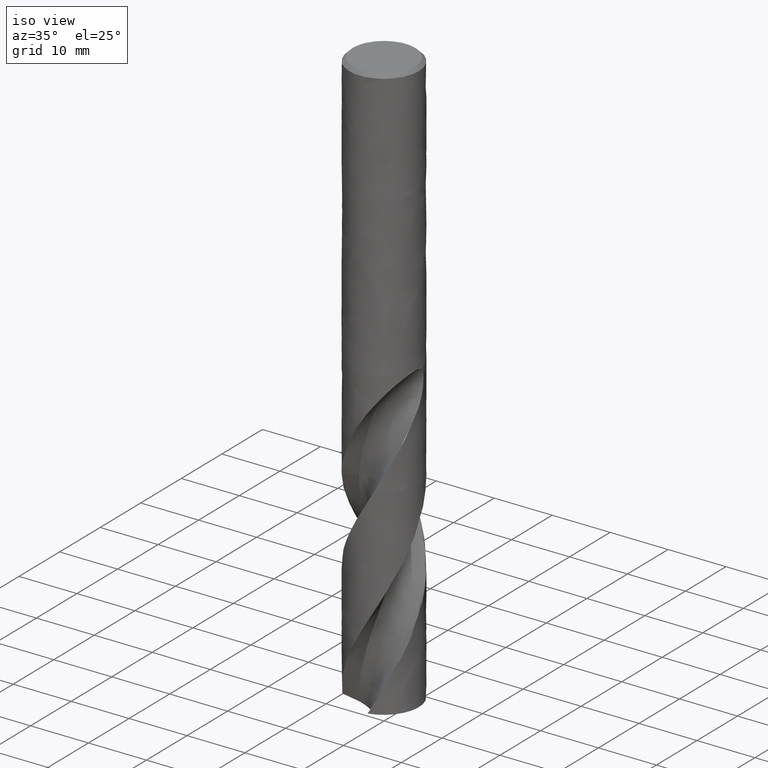
[diagram: clean part render]
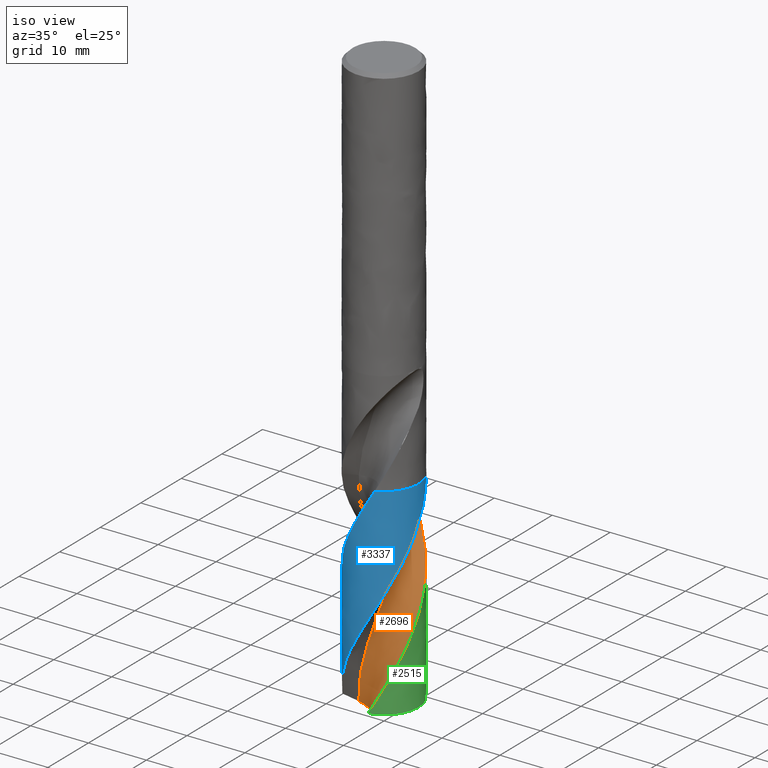
[diagram: same view with three faces highlighted in distinct colors, each labeled with its STEP entity id]
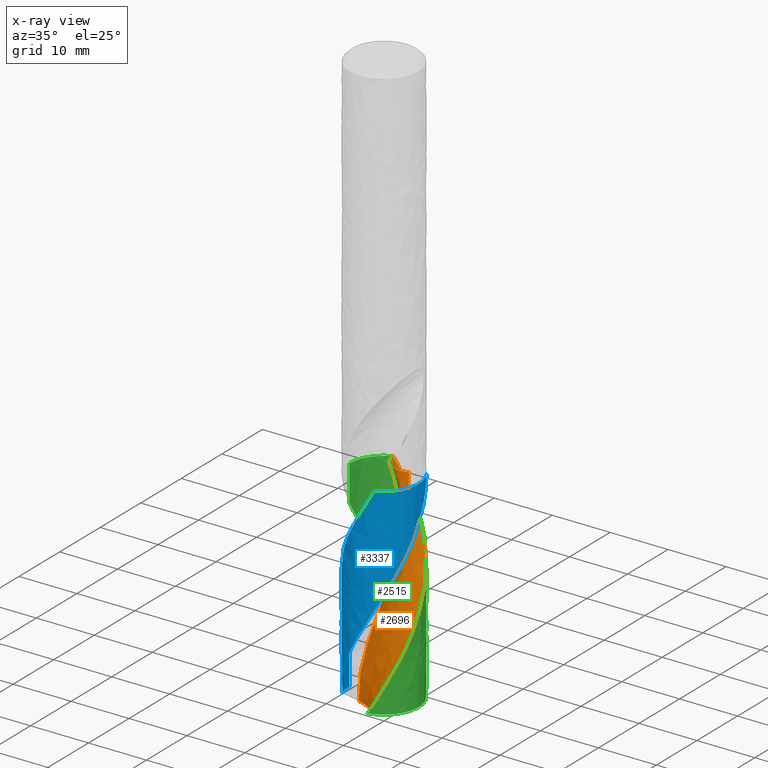
[diagram: x-ray of the same camera — body ghosted, the three highlighted faces saturated]
A machine part, iso view with three faces highlighted in distinct colors.
The next image is the same camera in x-ray (body ghosted, the three faces saturated) — at least one of them is partly hidden behind the body in this view.
Their STEP definitions:

[orange] entity #2696 — the highlighted face is a freeform B-spline surface patch.
#2105 = VERTEX_POINT('', #2106);
#2106 = CARTESIAN_POINT('', (2.67689118029726, 2.39508249800853, -65.));
#2112 = EDGE_CURVE('', #2105, #2113, #2115, .T.);
#2113 = VERTEX_POINT('', #2114);
#2114 = CARTESIAN_POINT('', (-2.27715910033801, 5.55108515803422, -65.));
#2115 = B_SPLINE_CURVE_WITH_KNOTS('', 3, (#2116, #2117, #2118, #2119, #2120, #2121, #2122, #2123, #2124, #2125, #2126, #2127, #2128, #2129, #2130, #2131, #2132, #2133, #2134, #2135, #2136, #2137, #2138, #2139, #2140, #2141, #2142, #2143, #2144, #2145, #2146, #2147, #2148, #2149, #2150, #2151, #2152, #2153, #2154, #2155, #2156, #2157, #2158, #2159, #2160, #2161, #2162, #2163, #2164, #2165, #2166, #2167, #2168, #2169, #2170, #2171, #2172, #2173, #2174, #2175, #2176, #2177, #2178, #2179, #2180, #2181, #2182, #2183, #2184, #2185, #2186, #2187, #2188, #2189, #2190, #2191), .UNSPECIFIED., .F., .U., (4, 3, 3, 3, 3, 3, 3, 3, 3, 3, 3, 3, 3, 3, 3, 3, 3, 3, 3, 3, 3, 3, 3, 3, 3, 4), (0., 0.297074784133163, 0.59388247649632, 0.890428645356707, 1.18671781769646, 1.48275354789705, 1.77853847074824, 2.07407434048509, 2.36936205708442, 2.66440168064749, 2.95919243433534, 3.25373269598857, 3.45020848857844, 3.48914695060014, 3.78619048998578, 4.08296763821652, 4.37948383892874, 4.67574350329585, 4.97175007679336, 5.26750609051264, 5.56301319866806, 5.85827220347879, 6.15328306820888, 6.44804491879185, 6.74255603413405, 6.86809210500296), .UNSPECIFIED.);
#2116 = CARTESIAN_POINT('', (2.67689118029726, 2.39508249800853, -65.));
#2117 = CARTESIAN_POINT('', (2.58518822134422, 2.3577126747088, -65.));
#2118 = CARTESIAN_POINT('', (2.49186274288399, 2.32410131696284, -65.));
#2119 = CARTESIAN_POINT('', (2.39739079761629, 2.2944198761027, -65.));
#2120 = CARTESIAN_POINT('', (2.30300378947698, 2.26476512100992, -65.));
#2121 = CARTESIAN_POINT('', (2.20731210632846, 2.23898285266252, -65.));
#2122 = CARTESIAN_POINT('', (2.11080299466189, 2.21720435017875, -65.));
#2123 = CARTESIAN_POINT('', (2.01437891920424, 2.19544503719175, -65.));
#2124 = CARTESIAN_POINT('', (1.91697541574422, 2.17764554290797, -65.));
#2125 = CARTESIAN_POINT('', (1.81908757457202, 2.16389634001553, -65.));
#2126 = CARTESIAN_POINT('', (1.72128456617541, 2.15015905262791, -65.));
#2127 = CARTESIAN_POINT('', (1.62283256951824, 2.14044178290235, -65.));
#2128 = CARTESIAN_POINT('', (1.52423113837101, 2.13479383708855, -65.));
#2129 = CARTESIAN_POINT('', (1.42571404968367, 2.12915072245862, -65.));
#2130 = CARTESIAN_POINT('', (1.32688136873356, 2.12756042898992, -65.));
#2131 = CARTESIAN_POINT('', (1.22823372443918, 2.13003101218488, -65.));
#2132 = CARTESIAN_POINT('', (1.12966965638801, 2.13249950225269, -65.));
#2133 = CARTESIAN_POINT('', (1.03112410027255, 2.13902614205969, -65.));
#2134 = CARTESIAN_POINT('', (0.933095386209476, 2.14957792736599, -65.));
#2135 = CARTESIAN_POINT('', (0.835149213055849, 2.16012082799024, -65.));
#2136 = CARTESIAN_POINT('', (0.737554119770081, 2.17469983594969, -65.));
#2137 = CARTESIAN_POINT('', (0.640802800417377, 2.193241351328, -65.));
#2138 = CARTESIAN_POINT('', (0.544132720419742, 2.2117672979186, -65.));
#2139 = CARTESIAN_POINT('', (0.448142526176011, 2.23428022492377, -65.));
#2140 = CARTESIAN_POINT('', (0.353315997231219, 2.26066666977922, -65.));
#2141 = CARTESIAN_POINT('', (0.258569139062289, 2.28703094543205, -65.));
#2142 = CARTESIAN_POINT('', (0.16482501832718, 2.31730645692551, -65.));
#2143 = CARTESIAN_POINT('', (0.0725553020535893, 2.35134087512787, -65.));
#2144 = CARTESIAN_POINT('', (-0.0196365834781581, 2.3853465848425, -65.));
#2145 = CARTESIAN_POINT('', (-0.110510977975363, 2.4231618120798, -65.));
#2146 = CARTESIAN_POINT('', (-0.199611423301388, 2.46459661259578, -65.));
#2147 = CARTESIAN_POINT('', (-0.288636157460911, 2.50599620479075, -65.));
#2148 = CARTESIAN_POINT('', (-0.376038826345168, 2.55107843886268, -65.));
#2149 = CARTESIAN_POINT('', (-0.46138115498793, 2.59961725289758, -65.));
#2150 = CARTESIAN_POINT('', (-0.51830954083045, 2.63199551556819, -65.));
#2151 = CARTESIAN_POINT('', (-0.574374884330232, 2.66594050126904, -65.));
#2152 = CARTESIAN_POINT('', (-0.629452001885327, 2.70137641708935, -65.));
#2153 = CARTESIAN_POINT('', (-0.640367434376601, 2.70839926730507, -65.));
#2154 = CARTESIAN_POINT('', (-0.651245044050916, 2.7154812553495, -65.));
#2155 = CARTESIAN_POINT('', (-0.662083876445775, 2.72262175980928, -65.));
#2156 = CARTESIAN_POINT('', (-0.744768321855608, 2.77709336982175, -65.));
#2157 = CARTESIAN_POINT('', (-0.825271883015731, 2.83502840502718, -65.));
#2158 = CARTESIAN_POINT('', (-0.903183998013762, 2.89613140124354, -65.));
#2159 = CARTESIAN_POINT('', (-0.981026240769031, 2.95717959977683, -65.));
#2160 = CARTESIAN_POINT('', (-1.05641384263355, 3.0214937105718, -65.));
#2161 = CARTESIAN_POINT('', (-1.12896302109751, 3.08874632394508, -65.));
#2162 = CARTESIAN_POINT('', (-1.20144840917799, 3.15593980405058, -65.));
#2163 = CARTESIAN_POINT('', (-1.27122321167209, 3.22618048471091, -65.));
#2164 = CARTESIAN_POINT('', (-1.33793284323947, 3.29911141306104, -65.));
#2165 = CARTESIAN_POINT('', (-1.40458475976455, 3.37197924390163, -65.));
#2166 = CARTESIAN_POINT('', (-1.46828957406393, 3.44765593555299, -65.));
#2167 = CARTESIAN_POINT('', (-1.52872410681369, 3.52575757445512, -65.));
#2168 = CARTESIAN_POINT('', (-1.58910701110946, 3.6037924921188, -65.));
#2169 = CARTESIAN_POINT('', (-1.64632720629194, 3.684379998138, -65.));
#2170 = CARTESIAN_POINT('', (-1.70009490512838, 3.76711196334978, -65.));
#2171 = CARTESIAN_POINT('', (-1.75381709138537, 3.84977389868821, -65.));
#2172 = CARTESIAN_POINT('', (-1.80418320872513, 3.93471602561462, -65.));
#2173 = CARTESIAN_POINT('', (-1.85093861295699, 4.0215088883698, -65.));
#2174 = CARTESIAN_POINT('', (-1.89765466826706, 4.10822870704323, -65.));
#2175 = CARTESIAN_POINT('', (-1.94084472600421, 4.19694210542159, -65.));
#2176 = CARTESIAN_POINT('', (-1.9802907900788, 4.28720131438948, -65.));
#2177 = CARTESIAN_POINT('', (-2.01970373582844, 4.37738474307658, -65.));
#2178 = CARTESIAN_POINT('', (-2.05544520947928, 4.46926292152214, -65.));
#2179 = CARTESIAN_POINT('', (-2.08733511309656, 4.56237288419911, -65.));
#2180 = CARTESIAN_POINT('', (-2.1191982159622, 4.6554045958718, -65.));
#2181 = CARTESIAN_POINT('', (-2.14726968154179, 4.74982208068681, -65.));
#2182 = CARTESIAN_POINT('', (-2.17140829770595, 4.8451503761224, -65.));
#2183 = CARTESIAN_POINT('', (-2.19552653883436, 4.94039820640562, -65.));
#2184 = CARTESIAN_POINT('', (-2.21575896873282, 5.03671481829359, -65.));
#2185 = CARTESIAN_POINT('', (-2.23200398068693, 5.13361651237269, -65.));
#2186 = CARTESIAN_POINT('', (-2.24823517403807, 5.23043577831684, -65.));
#2187 = CARTESIAN_POINT('', (-2.26051287771009, 5.32800099715006, -65.));
#2188 = CARTESIAN_POINT('', (-2.26877553812963, 5.42582303116264, -65.));
#2189 = CARTESIAN_POINT('', (-2.27229751699548, 5.46751990830793, -65.));
#2190 = CARTESIAN_POINT('', (-2.27509279034027, 5.50928665133156, -65.));
#2191 = CARTESIAN_POINT('', (-2.27715902813225, 5.55108516160358, -65.));
#2520 = EDGE_CURVE('', #2113, #2521, #2523, .T.);
#2521 = VERTEX_POINT('', #2522);
#2522 = CARTESIAN_POINT('', (-0.577059171768272, 5.97218575667889, -68.0517271769491));
#2523 = B_SPLINE_CURVE_WITH_KNOTS('', 3, (#2524, #2525, #2526, #2527, #2528, #2529, #2530, #2531, #2532, #2533, #2534, #2535, #2536), .UNSPECIFIED., .F., .U., (4, 3, 3, 3, 4), (7.2710134947941, 7.90423449804069, 8.90051792515169, 9.89657756311769, 10.7925224345988), .UNSPECIFIED.);
#2524 = CARTESIAN_POINT('', (-2.27715910033801, 5.55108515803422, -65.));
#2525 = CARTESIAN_POINT('', (-2.17964666319312, 5.59108658610081, -65.1828751037502));
#2526 = CARTESIAN_POINT('', (-2.08107050470833, 5.6285210848046, -65.3658018574239));
#2527 = CARTESIAN_POINT('', (-1.981607685674, 5.66332331587005, -65.5486899258143));
#2528 = CARTESIAN_POINT('', (-1.8251170485827, 5.71807968980462, -65.8364383590145));
#2529 = CARTESIAN_POINT('', (-1.66633333440727, 5.7663515702527, -66.1242555615794));
#2530 = CARTESIAN_POINT('', (-1.50587647047148, 5.80795455007004, -66.4120220079888));
#2531 = CARTESIAN_POINT('', (-1.3454556489945, 5.84954818486063, -66.6997238151547));
#2532 = CARTESIAN_POINT('', (-1.18329603504048, 5.884493221719, -66.987499032892));
#2533 = CARTESIAN_POINT('', (-1.02002743482183, 5.91265964116054, -67.2752267118934));
#2534 = CARTESIAN_POINT('', (-0.873169094754442, 5.93799503081469, -67.5340346472403));
#2535 = CARTESIAN_POINT('', (-0.725360104031492, 5.95785626047248, -67.7928984682573));
#2536 = CARTESIAN_POINT('', (-0.57705917176822, 5.97218575667889, -68.0517271769492));
#2539 = VERTEX_POINT('', #2540);
#2540 = CARTESIAN_POINT('', (2.49270495549511, -5.45769383575609, -97.5513793613403));
#2658 = EDGE_CURVE('', #2539, #2659, #2661, .T.);
#2659 = VERTEX_POINT('', #2660);
#2660 = CARTESIAN_POINT('', (1.27676876593837, -5.86258147221206, -99.8161785944028));
#2661 = B_SPLINE_CURVE_WITH_KNOTS('', 3, (#2662, #2663, #2664, #2665, #2666, #2667, #2668, #2669, #2670, #2671), .UNSPECIFIED., .F., .U., (4, 3, 3, 4), (0., 0.996560625313039, 1.99291443164788, 2.60331448801441), .UNSPECIFIED.);
#2662 = CARTESIAN_POINT('', (2.4927049554951, -5.4576938357561, -97.5513793613403));
#2663 = CARTESIAN_POINT('', (2.34362651255867, -5.52578277307071, -97.8403216297238));
#2664 = CARTESIAN_POINT('', (2.191745073487, -5.58776334814458, -98.1293349905167));
#2665 = CARTESIAN_POINT('', (2.03763625994222, -5.64340663714464, -98.4183028398853));
#2666 = CARTESIAN_POINT('', (1.88355942902504, -5.6990383783393, -98.7072107189581));
#2667 = CARTESIAN_POINT('', (1.72719146948728, -5.74835889903267, -98.9961897208511));
#2668 = CARTESIAN_POINT('', (1.56912161010172, -5.79118790687289, -99.2851220982086));
#2669 = CARTESIAN_POINT('', (1.4722826654765, -5.81742640632316, -99.4621318494675));
#2670 = CARTESIAN_POINT('', (1.37478624046809, -5.8412349628989, -99.6391599701928));
#2671 = CARTESIAN_POINT('', (1.27676876593838, -5.86258147221206, -99.8161785944028));
#2696 = ADVANCED_FACE('', (#2697), #2906, .T.);
#2697 = FACE_OUTER_BOUND('', #2698, .T.);
#2698 = EDGE_LOOP('', (#2699, #2700, #2741, #2871, #2872, #2905));
#2699 = ORIENTED_EDGE('', *, *, #2112, .F.);
#2700 = ORIENTED_EDGE('', *, *, #2701, .F.);
#2701 = EDGE_CURVE('', #2702, #2105, #2704, .T.);
#2702 = VERTEX_POINT('', #2703);
#2703 = CARTESIAN_POINT('', (-3.19951575281794, -1.63422535466537, -100.692359060152));
#2704 = B_SPLINE_CURVE_WITH_KNOTS('', 3, (#2705, #2706, #2707, #2708, #2709, #2710, #2711, #2712, #2713, #2714, #2715, #2716, #2717, #2718, #2719, #2720, #2721, #2722, #2723, #2724, #2725, #2726, #2727, #2728, #2729, #2730, #2731, #2732, #2733, #2734, #2735, #2736, #2737, #2738, #2739, #2740), .UNSPECIFIED., .F., .U., (4, 1, 1, 1, 1, 1, 1, 1, 1, 1, 1, 1, 1, 1, 1, 1, 1, 1, 1, 1, 1, 1, 1, 1, 1, 1, 1, 1, 1, 1, 1, 1, 1, 4), (1.35764093984823, 2.2028, 3.3042, 4.4056, 5.507, 6.6084, 7.7098, 8.8112, 9.9126, 11.014, 12.1154, 13.2168, 14.3182, 15.4196, 16.521, 17.6224, 18.7238, 19.8252, 20.9266, 22.028, 23.1294, 24.2308, 25.3322, 26.4336, 27.535, 28.6364, 29.7378, 30.8392, 31.9406, 33.042, 34.1434, 35.2448, 36.3462, 37.05), .UNSPECIFIED.);
#2705 = CARTESIAN_POINT('', (-3.19951575281794, -1.63422535466537, -100.692359060152));
#2706 = CARTESIAN_POINT('', (-3.15357219183988, -1.71899833906773, -100.410639373435));
#2707 = CARTESIAN_POINT('', (-3.04012014692603, -1.90985794145532, -99.7617863533839));
#2708 = CARTESIAN_POINT('', (-2.83624783397093, -2.19076765387687, -98.7458));
#2709 = CARTESIAN_POINT('', (-2.58556225749222, -2.4701996834714, -97.6444));
#2710 = CARTESIAN_POINT('', (-2.30796932121323, -2.72171165635998, -96.543));
#2711 = CARTESIAN_POINT('', (-2.00650311223411, -2.94277939149954, -95.4416));
#2712 = CARTESIAN_POINT('', (-1.68442585480345, -3.13119909533141, -94.3402));
#2713 = CARTESIAN_POINT('', (-1.34519690621638, -3.28510889386325, -93.2388));
#2714 = CARTESIAN_POINT('', (-0.992437256280548, -3.40300527566991, -92.1374));
#2715 = CARTESIAN_POINT('', (-0.629893427514948, -3.48375653407726, -91.036));
#2716 = CARTESIAN_POINT('', (-0.261400152587537, -3.52661251478107, -89.9346));
#2717 = CARTESIAN_POINT('', (0.10915757470606, -3.5312107594725, -88.8332));
#2718 = CARTESIAN_POINT('', (0.477882800358313, -3.49757896510843, -87.7318));
#2719 = CARTESIAN_POINT('', (0.840904900449291, -3.42613376356489, -86.6304));
#2720 = CARTESIAN_POINT('', (1.19441752348301, -3.3176758427233, -85.529));
#2721 = CARTESIAN_POINT('', (1.53471584555617, -3.17338146434087, -84.4276));
#2722 = CARTESIAN_POINT('', (1.85823280775912, -2.99479046285121, -83.3262));
#2723 = CARTESIAN_POINT('', (2.1615740141526, -2.7837908385842, -82.2248));
#2724 = CARTESIAN_POINT('', (2.44155098056631, -2.54260008692987, -81.1234));
#2725 = CARTESIAN_POINT('', (2.69521243851664, -2.27374343197842, -80.022));
#2726 = CARTESIAN_POINT('', (2.91987341484703, -1.98002915883716, -78.9206));
#2727 = CARTESIAN_POINT('', (3.11314182606479, -1.66452126309833, -77.8192));
#2728 = CARTESIAN_POINT('', (3.2729423468062, -1.33050965837686, -76.7178));
#2729 = CARTESIAN_POINT('', (3.39753733381056, -0.981478204302161, -75.6164));
#2730 = CARTESIAN_POINT('', (3.48554461183926, -0.621070833980943, -74.515));
#2731 = CARTESIAN_POINT('', (3.53595194946629, -0.253056085456912, -73.4136));
#2732 = CARTESIAN_POINT('', (3.54812809479906, 0.118709675706851, -72.3122));
#2733 = CARTESIAN_POINT('', (3.52183021288659, 0.490319923235979, -71.2108));
#2734 = CARTESIAN_POINT('', (3.45720780695582, 0.857856544332248, -70.1094));
#2735 = CARTESIAN_POINT('', (3.35480244825163, 1.21742766147589, -69.008));
#2736 = CARTESIAN_POINT('', (3.21554560966392, 1.56520927034945, -67.9066));
#2737 = CARTESIAN_POINT('', (3.04074595970818, 1.89747199726517, -66.8052));
#2738 = CARTESIAN_POINT('', (2.85720535604411, 2.17297452124343, -65.8363333333333));
#2739 = CARTESIAN_POINT('', (2.72895117704706, 2.33397271474819, -65.2346));
#2740 = CARTESIAN_POINT('', (2.67689118029726, 2.39508249800853, -65.));
#2741 = ORIENTED_EDGE('', *, *, #2742, .T.);
#2742 = EDGE_CURVE('', #2702, #2659, #2743, .T.);
#2743 = B_SPLINE_CURVE_WITH_KNOTS('', 3, (#2744, #2745, #2746, #2747, #2748, #2749, #2750, #2751, #2752, #2753, #2754, #2755, #2756, #2757, #2758, #2759, #2760, #2761, #2762, #2763, #2764, #2765, #2766, #2767, #2768, #2769, #2770, #2771, #2772, #2773, #2774, #2775, #2776, #2777, #2778, #2779, #2780, #2781, #2782, #2783, #2784, #2785, #2786, #2787, #2788, #2789, #2790, #2791, #2792, #2793, #2794, #2795, #2796, #2797, #2798, #2799, #2800, #2801, #2802, #2803, #2804, #2805, #2806, #2807, #2808, #2809, #2810, #2811, #2812, #2813, #2814, #2815, #2816, #2817, #2818, #2819, #2820, #2821, #2822, #2823, #2824, #2825, #2826, #2827, #2828, #2829, #2830, #2831, #2832, #2833, #2834, #2835, #2836, #2837, #2838, #2839, #2840, #2841, #2842, #2843, #2844, #2845, #2846, #2847, #2848, #2849, #2850, #2851, #2852, #2853, #2854, #2855, #2856, #2857, #2858, #2859, #2860, #2861, #2862, #2863, #2864, #2865, #2866, #2867, #2868, #2869, #2870), .UNSPECIFIED., .F., .U., (4, 3, 3, 3, 3, 3, 3, 3, 3, 3, 3, 3, 3, 3, 3, 3, 3, 3, 3, 3, 3, 3, 3, 3, 3, 3, 3, 3, 3, 3, 3, 3, 3, 3, 3, 3, 3, 3, 3, 3, 3, 3, 4), (0., 0.197263139069548, 0.394394021810989, 0.591351824739984, 0.788093900501361, 0.984582711255246, 1.1155813967322, 1.24650169189798, 1.37735116103897, 1.50814398890355, 1.63890113216055, 1.7696492598467, 1.90041827512799, 2.03123763517426, 2.16213219889185, 2.2931186697437, 2.42420361559585, 2.55538351943595, 2.68664661143889, 2.81797572274755, 2.9493512879107, 3.08075384641689, 3.21216574671206, 3.34357205455768, 3.47496083408914, 3.51389560447471, 3.71197543812155, 3.75094248917848, 3.94953353023669, 4.14778120693169, 4.34573551302099, 4.5434395658974, 4.74092949972846, 4.93823506475065, 5.13538047684484, 5.33238529032225, 5.52926519321063, 5.72603268978685, 6.02072638587149, 6.31510980788521, 6.60920912986105, 6.90304073106365, 7.15963206366408), .UNSPECIFIED.);
#2744 = CARTESIAN_POINT('', (-3.19951575281794, -1.63422535466536, -100.692359060152));
#2745 = CARTESIAN_POINT('', (-3.13935622681239, -1.61932742953078, -100.714325436864));
#2746 = CARTESIAN_POINT('', (-3.07856781558002, -1.6065404233569, -100.736117328317));
#2747 = CARTESIAN_POINT('', (-3.01733676414016, -1.59595415765482, -100.757619136763));
#2748 = CARTESIAN_POINT('', (-2.95614676544878, -1.58537498958201, -100.779106529185));
#2749 = CARTESIAN_POINT('', (-2.89444244272994, -1.57698140299027, -100.800329787367));
#2750 = CARTESIAN_POINT('', (-2.83242148031587, -1.5708482849912, -100.821153520339));
#2751 = CARTESIAN_POINT('', (-2.7704549719599, -1.56472055183544, -100.84195897019));
#2752 = CARTESIAN_POINT('', (-2.70809559774334, -1.56084208448984, -100.862391512641));
#2753 = CARTESIAN_POINT('', (-2.64555198014478, -1.5592689475171, -100.882293400811));
#2754 = CARTESIAN_POINT('', (-2.58307686634387, -1.55769753359558, -100.902173490514));
#2755 = CARTESIAN_POINT('', (-2.52033664155691, -1.55842481057437, -100.921549966324));
#2756 = CARTESIAN_POINT('', (-2.45755040582865, -1.56148301255846, -100.940241225149));
#2757 = CARTESIAN_POINT('', (-2.39484499448125, -1.56453727773571, -100.958908422818));
#2758 = CARTESIAN_POINT('', (-2.33200801305963, -1.56992120650163, -100.976917448389));
#2759 = CARTESIAN_POINT('', (-2.26926861135079, -1.57763675973644, -100.99406385117));
#2760 = CARTESIAN_POINT('', (-2.22744038143818, -1.58278070318853, -101.005495322592));
#2761 = CARTESIAN_POINT('', (-2.18562251080628, -1.58896409518478, -101.016552058444));
#2762 = CARTESIAN_POINT('', (-2.14388546961408, -1.59617826410026, -101.027168774986));
#2763 = CARTESIAN_POINT('', (-2.10217340408964, -1.60338811601864, -101.037779138427));
#2764 = CARTESIAN_POINT('', (-2.06051454372556, -1.6116323615979, -101.047956882056));
#2765 = CARTESIAN_POINT('', (-2.01898108919599, -1.62089358427331, -101.057634696725));
#2766 = CARTESIAN_POINT('', (-1.97747010367688, -1.63014979675846, -101.067307275833));
#2767 = CARTESIAN_POINT('', (-1.93605617857402, -1.64042826342041, -101.076486859226));
#2768 = CARTESIAN_POINT('', (-1.89481285177438, -1.65170169012974, -101.085106373114));
#2769 = CARTESIAN_POINT('', (-1.85358737812071, -1.66297023687063, -101.093722155842));
#2770 = CARTESIAN_POINT('', (-1.81250363675537, -1.67524080065101, -101.101784128231));
#2771 = CARTESIAN_POINT('', (-1.77163579640056, -1.68847531728328, -101.109228503953));
#2772 = CARTESIAN_POINT('', (-1.73077910614373, -1.70170622310187, -101.116670848603));
#2773 = CARTESIAN_POINT('', (-1.69010923081359, -1.71590996968612, -101.123500954681));
#2774 = CARTESIAN_POINT('', (-1.64969984513846, -1.7310373418185, -101.129662014909));
#2775 = CARTESIAN_POINT('', (-1.60929324564899, -1.74616367093409, -101.135822650339));
#2776 = CARTESIAN_POINT('', (-1.56911823572453, -1.76222428377045, -101.141318483197));
#2777 = CARTESIAN_POINT('', (-1.52924641297286, -1.77915923749425, -101.146103630692));
#2778 = CARTESIAN_POINT('', (-1.48936822052009, -1.79609689665225, -101.150889542635));
#2779 = CARTESIAN_POINT('', (-1.44976499472804, -1.81392111892768, -101.154967741498));
#2780 = CARTESIAN_POINT('', (-1.41050430163231, -1.8325626780689, -101.15830686333));
#2781 = CARTESIAN_POINT('', (-1.3712284935618, -1.85121141402423, -101.16164727069));
#2782 = CARTESIAN_POINT('', (-1.33226821248276, -1.87069091391363, -101.16425024674));
#2783 = CARTESIAN_POINT('', (-1.29368491142682, -1.89092515591576, -101.166101490614));
#2784 = CARTESIAN_POINT('', (-1.25507943012257, -1.91117102990634, -101.167953798707));
#2785 = CARTESIAN_POINT('', (-1.21682564773062, -1.93218579605673, -101.169054762274));
#2786 = CARTESIAN_POINT('', (-1.1789770590159, -1.95388992368228, -101.169408063796));
#2787 = CARTESIAN_POINT('', (-1.14110189505448, -1.97560929078084, -101.169761613386));
#2788 = CARTESIAN_POINT('', (-1.10360878190462, -1.99803235302628, -101.169366813847));
#2789 = CARTESIAN_POINT('', (-1.0665420165174, -2.02107967475825, -101.168244399355));
#2790 = CARTESIAN_POINT('', (-1.02944738451382, -2.04414432335611, -101.167121141036));
#2791 = CARTESIAN_POINT('', (-0.992758360122957, -2.06784723286956, -101.165268763954));
#2792 = CARTESIAN_POINT('', (-0.956509647567212, -2.09211240875776, -101.162722487292));
#2793 = CARTESIAN_POINT('', (-0.920234676429387, -2.11639516234922, -101.160174366106));
#2794 = CARTESIAN_POINT('', (-0.884381774115639, -2.14125343015823, -101.156930302776));
#2795 = CARTESIAN_POINT('', (-0.848976525071336, -2.16661726745414, -101.153036375151));
#2796 = CARTESIAN_POINT('', (-0.813548823673154, -2.19199718930999, -101.149139978179));
#2797 = CARTESIAN_POINT('', (-0.778552966983521, -2.21789488969137, -101.144591385124));
#2798 = CARTESIAN_POINT('', (-0.744006580540755, -2.2442480954479, -101.139443560416));
#2799 = CARTESIAN_POINT('', (-0.709442818852494, -2.27061455565639, -101.134293146587));
#2800 = CARTESIAN_POINT('', (-0.675314970504421, -2.29744754925393, -101.128541072527));
#2801 = CARTESIAN_POINT('', (-0.641634258853789, -2.32469311367359, -101.122243494363));
#2802 = CARTESIAN_POINT('', (-0.607941633630741, -2.35194831541945, -101.115943688614));
#2803 = CARTESIAN_POINT('', (-0.574684583538587, -2.37962591547095, -101.10909598155));
#2804 = CARTESIAN_POINT('', (-0.541869587477843, -2.40768010475845, -101.101756699156));
#2805 = CARTESIAN_POINT('', (-0.509047849018353, -2.43574005825602, -101.094415908781));
#2806 = CARTESIAN_POINT('', (-0.476658312087889, -2.46418529709962, -101.086581248991));
#2807 = CARTESIAN_POINT('', (-0.444704247400579, -2.49297747566218, -101.078307017142));
#2808 = CARTESIAN_POINT('', (-0.412747911006136, -2.52177170114421, -101.070032197054));
#2809 = CARTESIAN_POINT('', (-0.3812186203938, -2.55092055332021, -101.061315643816));
#2810 = CARTESIAN_POINT('', (-0.35011772755217, -2.58039217915503, -101.052208216108));
#2811 = CARTESIAN_POINT('', (-0.319018158260187, -2.60986255077633, -101.043101175981));
#2812 = CARTESIAN_POINT('', (-0.288339727467532, -2.63966251966521, -101.033601236071));
#2813 = CARTESIAN_POINT('', (-0.25808287001798, -2.66976566821872, -101.023755058236));
#2814 = CARTESIAN_POINT('', (-0.227830048536802, -2.69986480130711, -101.013910193785));
#2815 = CARTESIAN_POINT('', (-0.197992483845862, -2.73027322283194, -101.003717189478));
#2816 = CARTESIAN_POINT('', (-0.168570422134951, -2.76096893314759, -100.993218235758));
#2817 = CARTESIAN_POINT('', (-0.159851707941323, -2.77006507086364, -100.990107054165));
#2818 = CARTESIAN_POINT('', (-0.151169165282727, -2.77918678613367, -100.986968867275));
#2819 = CARTESIAN_POINT('', (-0.142522804443525, -2.78833356846193, -100.983804698076));
#2820 = CARTESIAN_POINT('', (-0.0985346237063848, -2.83486763310496, -100.96770705316));
#2821 = CARTESIAN_POINT('', (-0.0554726492635346, -2.88206023713936, -100.950934805436));
#2822 = CARTESIAN_POINT('', (-0.0133398935547617, -2.9298533287903, -100.933609544242));
#2823 = CARTESIAN_POINT('', (-0.00505137062617067, -2.9392553754714, -100.930201250095));
#2824 = CARTESIAN_POINT('', (0.00320154170819612, -2.94868110113435, -100.92677134665));
#2825 = CARTESIAN_POINT('', (0.0114188033312761, -2.95813012083589, -100.923320665382));
#2826 = CARTESIAN_POINT('', (0.0532971209383897, -3.00628595014839, -100.905734669858));
#2827 = CARTESIAN_POINT('', (0.094258136763283, -3.0550558824595, -100.887606852069));
#2828 = CARTESIAN_POINT('', (0.13429380965933, -3.10439464514658, -100.869036014359));
#2829 = CARTESIAN_POINT('', (0.174260260785573, -3.15364810100037, -100.850497285671));
#2830 = CARTESIAN_POINT('', (0.21331716803042, -3.20348412841889, -100.831511030322));
#2831 = CARTESIAN_POINT('', (0.251451629989321, -3.25386442225179, -100.812159198497));
#2832 = CARTESIAN_POINT('', (0.289529659860896, -3.30417016238719, -100.792836003874));
#2833 = CARTESIAN_POINT('', (0.326699152508462, -3.35503348167235, -100.77314245293));
#2834 = CARTESIAN_POINT('', (0.362942342056235, -3.40642023048199, -100.753146879467));
#2835 = CARTESIAN_POINT('', (0.399139713077457, -3.45774201632495, -100.733176584346));
#2836 = CARTESIAN_POINT('', (0.434423283052939, -3.50960044630496, -100.712899255761));
#2837 = CARTESIAN_POINT('', (0.468770668697295, -3.56196353825687, -100.692372401184));
#2838 = CARTESIAN_POINT('', (0.503080855157734, -3.61426991950864, -100.671867777767));
#2839 = CARTESIAN_POINT('', (0.536466294688504, -3.6670943286703, -100.651108400401));
#2840 = CARTESIAN_POINT('', (0.568900320190025, -3.72040551772427, -100.630143260109));
#2841 = CARTESIAN_POINT('', (0.60130406656525, -3.77366693755591, -100.609197692044));
#2842 = CARTESIAN_POINT('', (0.632767010361645, -3.82742885051768, -100.588040912288));
#2843 = CARTESIAN_POINT('', (0.663258540854906, -3.88165967186442, -100.566715269803));
#2844 = CARTESIAN_POINT('', (0.693725321372729, -3.93584647405322, -100.545406937341));
#2845 = CARTESIAN_POINT('', (0.723230639062756, -3.99051640712765, -100.523924057559));
#2846 = CARTESIAN_POINT('', (0.751740253514688, -4.04563670851318, -100.502303846232));
#2847 = CARTESIAN_POINT('', (0.780229535703678, -4.10071769963504, -100.480699053837));
#2848 = CARTESIAN_POINT('', (0.807732515141389, -4.15626393226388, -100.458950987317));
#2849 = CARTESIAN_POINT('', (0.834211601583184, -4.21224076451469, -100.437092943731));
#2850 = CARTESIAN_POINT('', (0.860673899002284, -4.26818210474393, -100.415248759203));
#2851 = CARTESIAN_POINT('', (0.886121224047686, -4.32456969863136, -100.393288370097));
#2852 = CARTESIAN_POINT('', (0.910512887402007, -4.38136640205108, -100.371242137574));
#2853 = CARTESIAN_POINT('', (0.934890624617171, -4.43813067804739, -100.349208492092));
#2854 = CARTESIAN_POINT('', (0.958221178647436, -4.49532062362802, -100.327082460344));
#2855 = CARTESIAN_POINT('', (0.98046099422854, -4.55289600655858, -100.304892270673));
#2856 = CARTESIAN_POINT('', (1.01376900275574, -4.63912519935985, -100.271658585614));
#2857 = CARTESIAN_POINT('', (1.04465009715636, -4.72627093647858, -100.238261545514));
#2858 = CARTESIAN_POINT('', (1.07294671857687, -4.8141820049202, -100.204790360781));
#2859 = CARTESIAN_POINT('', (1.10121354734135, -4.90200051445932, -100.171354416845));
#2860 = CARTESIAN_POINT('', (1.12692240979786, -4.99064918994543, -100.137819073287));
#2861 = CARTESIAN_POINT('', (1.14990454699135, -5.07995402229266, -100.104270081315));
#2862 = CARTESIAN_POINT('', (1.17286450485829, -5.16917266939861, -100.070753466402));
#2863 = CARTESIAN_POINT('', (1.19312145888308, -5.25911937254766, -100.037195681847));
#2864 = CARTESIAN_POINT('', (1.2104978450492, -5.34959259525993, -100.00368229187));
#2865 = CARTESIAN_POINT('', (1.22785841336334, -5.43998345953295, -99.9701994093789));
#2866 = CARTESIAN_POINT('', (1.24235876424269, -5.5309808393972, -99.9367308289635));
#2867 = CARTESIAN_POINT('', (1.2538157504715, -5.62235061089392, -99.9033646272119));
#2868 = CARTESIAN_POINT('', (1.26382067625894, -5.70214016154738, -99.8742272637145));
#2869 = CARTESIAN_POINT('', (1.27151271099924, -5.78227706946706, -99.8451446723444));
#2870 = CARTESIAN_POINT('', (1.27676876593837, -5.86258147221206, -99.8161785944028));
#2871 = ORIENTED_EDGE('', *, *, #2658, .F.);
#2872 = ORIENTED_EDGE('', *, *, #2873, .T.);
#2873 = EDGE_CURVE('', #2539, #2521, #2874, .T.);
#2874 = (
   BOUNDED_CURVE ()
   B_SPLINE_CURVE (3, (#2875, #2876, #2877, #2878, #2879, #2880, #2881, #2882, #2883, #2884, #2885, #2886, #2887, #2888, #2889, #2890, #2891, #2892, #2893, #2894, #2895, #2896, #2897, #2898, #2899, #2900, #2901, #2902, #2903, #2904), .UNSPECIFIED., .F., .U.)
   B_SPLINE_CURVE_WITH_KNOTS ((4, 1, 1, 1, 1, 1, 1, 1, 1, 1, 1, 1, 1, 1, 1, 1, 1, 1, 1, 1, 1, 1, 1, 1, 1, 1, 1, 4), (4.49862063865979, 5.507, 6.6084, 7.7098, 8.8112, 9.9126, 11.014, 12.1154, 13.2168, 14.3182, 15.4196, 16.521, 17.6224, 18.7238, 19.8252, 20.9266, 22.028, 23.1294, 24.2308, 25.3322, 26.4336, 27.535, 28.6364, 29.7378, 30.8392, 31.9406, 33.042, 33.9982728230509), .UNSPECIFIED.)
   CURVE ()
   GEOMETRIC_REPRESENTATION_ITEM ()
   RATIONAL_B_SPLINE_CURVE ((1., 1., 1., 1., 1., 1., 1., 1., 1., 1., 1., 1., 1., 1., 1., 1., 1., 1., 1., 1., 1., 1., 1., 1., 1., 1., 1., 1., 1., 1.))
   REPRESENTATION_ITEM ('')
);
#2875 = CARTESIAN_POINT('', (2.49270495549513, -5.45769383575608, -97.5513793613402));
#2876 = CARTESIAN_POINT('', (2.66579956608751, -5.37435852840454, -97.2152529075601));
#2877 = CARTESIAN_POINT('', (3.01933999140113, -5.18301755431688, -96.5119931204467));
#2878 = CARTESIAN_POINT('', (3.52513805598977, -4.84058399736188, -95.4416));
#2879 = CARTESIAN_POINT('', (4.00554648878484, -4.43714009227076, -94.3402));
#2880 = CARTESIAN_POINT('', (4.44100984389504, -3.98703018948093, -93.2388));
#2881 = CARTESIAN_POINT('', (4.8271005462636, -3.49513761758962, -92.1374));
#2882 = CARTESIAN_POINT('', (5.15990875149204, -2.96675465331042, -91.036));
#2883 = CARTESIAN_POINT('', (5.43607887865409, -2.40752893736065, -89.9346));
#2884 = CARTESIAN_POINT('', (5.65284079088273, -1.82340686106084, -88.8332));
#2885 = CARTESIAN_POINT('', (5.80803534127442, -1.22057431294712, -87.7318));
#2886 = CARTESIAN_POINT('', (5.9001340866811, -0.605395362055786, -86.6304));
#2887 = CARTESIAN_POINT('', (5.92825301201162, 0.0156505760833208, -85.529));
#2888 = CARTESIAN_POINT('', (5.89216016092675, 0.636032522375035, -84.4276));
#2889 = CARTESIAN_POINT('', (5.79227711926694, 1.24923209498524, -83.3262));
#2890 = CARTESIAN_POINT('', (5.62967434906889, 1.8488074746145, -82.2248));
#2891 = CARTESIAN_POINT('', (5.40606042214574, 2.42845660376508, -81.1234));
#2892 = CARTESIAN_POINT('', (5.12376525291063, 2.98207905652792, -80.022));
#2893 = CARTESIAN_POINT('', (4.78571747998481, 3.50383602672355, -78.9206));
#2894 = CARTESIAN_POINT('', (4.39541619494825, 3.98820789759559, -77.8192));
#2895 = CARTESIAN_POINT('', (3.95689726369531, 4.43004887595898, -76.7178));
#2896 = CARTESIAN_POINT('', (3.47469453225158, 4.82463819632364, -75.6164));
#2897 = CARTESIAN_POINT('', (2.95379624940899, 5.16772743078225, -74.515));
#2898 = CARTESIAN_POINT('', (2.39959709107321, 5.45558346005764, -73.4136));
#2899 = CARTESIAN_POINT('', (1.81784616748598, 5.6850267376515, -72.3122));
#2900 = CARTESIAN_POINT('', (1.2145915880589, 5.85346435939966, -71.2108));
#2901 = CARTESIAN_POINT('', (0.596121601771069, 5.95891807866022, -70.1094));
#2902 = CARTESIAN_POINT('', (-0.00354679381843794, 5.99823887038447, -69.0563757256497));
#2903 = CARTESIAN_POINT('', (-0.395402697256955, 5.98603121415498, -68.3704847846328));
#2904 = CARTESIAN_POINT('', (-0.577059171768257, 5.97218575667889, -68.0517271769491));
#2905 = ORIENTED_EDGE('', *, *, #2520, .F.);
#2906 = (
   BOUNDED_SURFACE ()
   B_SPLINE_SURFACE (3, 2, ((#2907, #2908, #2909, #2910, #2911), (#2912, #2913, #2914, #2915, #2916), (#2917, #2918, #2919, #2920, #2921), (#2922, #2923, #2924, #2925, #2926), (#2927, #2928, #2929, #2930, #2931), (#2932, #2933, #2934, #2935, #2936), (#2937, #2938, #2939, #2940, #2941), (#2942, #2943, #2944, #2945, #2946), (#2947, #2948, #2949, #2950, #2951), (#2952, #2953, #2954, #2955, #2956), (#2957, #2958, #2959, #2960, #2961), (#2962, #2963, #2964, #2965, #2966), (#2967, #2968, #2969, #2970, #2971), (#2972, #2973, #2974, #2975, #2976), (#2977, #2978, #2979, #2980, #2981), (#2982, #2983, #2984, #2985, #2986), (#2987, #2988, #2989, #2990, #2991), (#2992, #2993, #2994, #2995, #2996), (#2997, #2998, #2999, #3000, #3001), (#3002, #3003, #3004, #3005, #3006), (#3007, #3008, #3009, #3010, #3011), (#3012, #3013, #3014, #3015, #3016), (#3017, #3018, #3019, #3020, #3021), (#3022, #3023, #3024, #3025, #3026), (#3027, #3028, #3029, #3030, #3031), (#3032, #3033, #3034, #3035, #3036), (#3037, #3038, #3039, #3040, #3041), (#3042, #3043, #3044, #3045, #3046), (#3047, #3048, #3049, #3050, #3051), (#3052, #3053, #3054, #3055, #3056), (#3057, #3058, #3059, #3060, #3061), (#3062, #3063, #3064, #3065, #3066), (#3067, #3068, #3069, #3070, #3071), (#3072, #3073, #3074, #3075, #3076), (#3077, #3078, #3079, #3080, #3081), (#3082, #3083, #3084, #3085, #3086)), .UNSPECIFIED., .F., .F., .U.)
   B_SPLINE_SURFACE_WITH_KNOTS ((4, 1, 1, 1, 1, 1, 1, 1, 1, 1, 1, 1, 1, 1, 1, 1, 1, 1, 1, 1, 1, 1, 1, 1, 1, 1, 1, 1, 1, 1, 1, 1, 1, 4), (3, 2, 3), (0.880238386610153, 2.2028, 3.3042, 4.4056, 5.507, 6.6084, 7.7098, 8.8112, 9.9126, 11.014, 12.1154, 13.2168, 14.3182, 15.4196, 16.521, 17.6224, 18.7238, 19.8252, 20.9266, 22.028, 23.1294, 24.2308, 25.3322, 26.4336, 27.535, 28.6364, 29.7378, 30.8392, 31.9406, 33.042, 34.1434, 35.2448, 36.3462, 37.0500000000003), (0., 0.5, 1.), .UNSPECIFIED.)
   GEOMETRIC_REPRESENTATION_ITEM ()
   RATIONAL_B_SPLINE_SURFACE (((1., 0.887010833178222, 1., 0.887010833178222, 1.), (1., 0.887010833178221, 1., 0.887010833178221, 1.), (1., 0.887010833178221, 1., 0.887010833178221, 1.), (1., 0.887010833178222, 1., 0.887010833178222, 1.), (1., 0.887010833178222, 1., 0.887010833178222, 1.), (1., 0.887010833178222, 1., 0.887010833178222, 1.), (1., 0.887010833178222, 1., 0.887010833178222, 1.), (1., 0.887010833178221, 1., 0.887010833178221, 1.), (1., 0.887010833178222, 1., 0.887010833178222, 1.), (1., 0.887010833178221, 1., 0.887010833178221, 1.), (1., 0.887010833178222, 1., 0.887010833178222, 1.), (1., 0.887010833178221, 1., 0.887010833178221, 1.), (1., 0.887010833178221, 1., 0.887010833178221, 1.), (1., 0.887010833178222, 1., 0.887010833178222, 1.), (1., 0.887010833178221, 1., 0.887010833178221, 1.), (1., 0.887010833178222, 1., 0.887010833178222, 1.), (1., 0.887010833178221, 1., 0.887010833178221, 1.), (1., 0.887010833178222, 1., 0.887010833178222, 1.), (1., 0.887010833178221, 1., 0.887010833178221, 1.), (1., 0.887010833178221, 1., 0.887010833178221, 1.), (1., 0.887010833178221, 1., 0.887010833178221, 1.), (1., 0.887010833178222, 1., 0.887010833178222, 1.), (1., 0.887010833178222, 1., 0.887010833178222, 1.), (1., 0.887010833178222, 1., 0.887010833178222, 1.), (1., 0.887010833178221, 1., 0.887010833178221, 1.), (1., 0.887010833178222, 1., 0.887010833178222, 1.), (1., 0.887010833178221, 1., 0.887010833178221, 1.), (1., 0.887010833178222, 1., 0.887010833178222, 1.), (1., 0.887010833178221, 1., 0.887010833178221, 1.), (1., 0.887010833178222, 1., 0.887010833178222, 1.), (1., 0.887010833178222, 1., 0.887010833178222, 1.), (1., 0.887010833178221, 1., 0.887010833178221, 1.), (1., 0.887010833178222, 1., 0.887010833178222, 1.), (1., 0.887010833178221, 1., 0.887010833178221, 1.), (1., 0.887010833178222, 1., 0.887010833178222, 1.), (1., 0.887010833178222, 1., 0.887010833178222, 1.)))
   REPRESENTATION_ITEM ('')
   SURFACE ()
);
#2907 = CARTESIAN_POINT('', (0.506340412635453, -6.02578146440422, -101.16976161339));
#2908 = CARTESIAN_POINT('', (0.998236863856786, -4.21489909178546, -101.16976161339));
#2909 = CARTESIAN_POINT('', (-0.203010920095517, -2.77328165025141, -101.16976161339));
#2910 = CARTESIAN_POINT('', (-1.40425870404782, -1.33166420871735, -101.16976161339));
#2911 = CARTESIAN_POINT('', (-3.27417000145706, -1.48879099194289, -101.16976161339));
#2912 = CARTESIAN_POINT('', (0.758802706175472, -5.99817613118203, -100.72890774226));
#2913 = CARTESIAN_POINT('', (1.17415025152879, -4.16854845553685, -100.72890774226));
#2914 = CARTESIAN_POINT('', (-0.0863594343527697, -2.77888434262446, -100.72890774226));
#2915 = CARTESIAN_POINT('', (-1.34686912023433, -1.38922022971207, -100.72890774226));
#2916 = CARTESIAN_POINT('', (-3.20821397281548, -1.62469072613879, -100.72890774226));
#2917 = CARTESIAN_POINT('', (1.21762958668977, -5.91892127021467, -99.9209205377966));
#2918 = CARTESIAN_POINT('', (1.49076966030186, -4.06370695914107, -99.9209205377966));
#2919 = CARTESIAN_POINT('', (0.127733774838796, -2.77585649625142, -99.9209205377966));
#2920 = CARTESIAN_POINT('', (-1.23530211062426, -1.48800603336178, -99.9209205377966));
#2921 = CARTESIAN_POINT('', (-3.07205271584133, -1.86585898632081, -99.9209205377966));
#2922 = CARTESIAN_POINT('', (1.86537649234372, -5.72923554323134, -98.7458));
#2923 = CARTESIAN_POINT('', (1.92949866474187, -3.86058561792638, -98.7458));
#2924 = CARTESIAN_POINT('', (0.435569225503056, -2.73624624437813, -98.7458));
#2925 = CARTESIAN_POINT('', (-1.05836021373575, -1.61190687082987, -98.7458));
#2926 = CARTESIAN_POINT('', (-2.83624783397093, -2.19076765387687, -98.7458));
#2927 = CARTESIAN_POINT('', (2.44953035020583, -5.49027995220663, -97.6444));
#2928 = CARTESIAN_POINT('', (2.31794934180884, -3.62931115986862, -97.6444));
#2929 = CARTESIAN_POINT('', (0.718061185319317, -2.66968816381688, -97.6444));
#2930 = CARTESIAN_POINT('', (-0.881826971170204, -1.71006516776513, -97.6444));
#2931 = CARTESIAN_POINT('', (-2.58556225749222, -2.4701996834714, -97.6444));
#2932 = CARTESIAN_POINT('', (3.00468815987551, -5.19293708374274, -96.543));
#2933 = CARTESIAN_POINT('', (2.67966239017439, -3.35975288721341, -96.543));
#2934 = CARTESIAN_POINT('', (0.991578685321701, -2.57452715229034, -96.543));
#2935 = CARTESIAN_POINT('', (-0.696505019530992, -1.78930141736727, -96.543));
#2936 = CARTESIAN_POINT('', (-2.30796932121323, -2.72171165635998, -96.543));
#2937 = CARTESIAN_POINT('', (3.52513805598977, -4.84058399736188, -95.4416));
#2938 = CARTESIAN_POINT('', (3.01094997191999, -3.05490932528286, -95.4416));
#2939 = CARTESIAN_POINT('', (1.25328474497647, -2.45188663060425, -95.4416));
#2940 = CARTESIAN_POINT('', (-0.504380481967055, -1.84886393592564, -95.4416));
#2941 = CARTESIAN_POINT('', (-2.00650311223411, -2.94277939149954, -95.4416));
#2942 = CARTESIAN_POINT('', (4.00554648878484, -4.43714009227076, -94.3402));
#2943 = CARTESIAN_POINT('', (3.30844980770621, -2.71812303808412, -94.3402));
#2944 = CARTESIAN_POINT('', (1.50047524347636, -2.3031635334897, -94.3402));
#2945 = CARTESIAN_POINT('', (-0.307499320753491, -1.88820402889529, -94.3402));
#2946 = CARTESIAN_POINT('', (-1.68442585480345, -3.13119909533141, -94.3402));
#2947 = CARTESIAN_POINT('', (4.44100984389504, -3.98703018948093, -93.2388));
#2948 = CARTESIAN_POINT('', (3.56915782574752, -2.35304899715433, -93.2388));
#2949 = CARTESIAN_POINT('', (1.7306050181289, -2.13001525077803, -93.2388));
#2950 = CARTESIAN_POINT('', (-0.10794778948971, -1.90698150440173, -93.2388));
#2951 = CARTESIAN_POINT('', (-1.34519690621638, -3.28510889386325, -93.2388));
#2952 = CARTESIAN_POINT('', (4.8271005462636, -3.49513761758962, -92.1374));
#2953 = CARTESIAN_POINT('', (3.79045584239077, -1.96361645446806, -92.1374));
#2954 = CARTESIAN_POINT('', (1.94131217573831, -1.93434163190737, -92.1374));
#2955 = CARTESIAN_POINT('', (0.0921685090858592, -1.90506680934668, -92.1374));
#2956 = CARTESIAN_POINT('', (-0.992437256280549, -3.40300527566991, -92.1374));
#2957 = CARTESIAN_POINT('', (5.15990875149204, -2.96675465331042, -91.036));
#2958 = CARTESIAN_POINT('', (3.97013583609855, -1.55398940978796, -91.036));
#2959 = CARTESIAN_POINT('', (2.1304405898883, -1.71826547189197, -91.036));
#2960 = CARTESIAN_POINT('', (0.29074534367804, -1.88254153399599, -91.036));
#2961 = CARTESIAN_POINT('', (-0.629893427514949, -3.48375653407726, -91.036));
#2962 = CARTESIAN_POINT('', (5.43607887865409, -2.40752893736065, -89.9346));
#2963 = CARTESIAN_POINT('', (4.1064201399905, -1.12852477447629, -89.9346));
#2964 = CARTESIAN_POINT('', (2.29606034442395, -1.48411079863392, -89.9346));
#2965 = CARTESIAN_POINT('', (0.485700548857408, -1.83969682279156, -89.9346));
#2966 = CARTESIAN_POINT('', (-0.261400152587539, -3.52661251478107, -89.9346));
#2967 = CARTESIAN_POINT('', (5.65284079088273, -1.82340686106084, -88.8332));
#2968 = CARTESIAN_POINT('', (4.19797752137426, -0.691728957430307, -88.8332));
#2969 = CARTESIAN_POINT('', (2.43648596363593, -1.23437939974752, -88.8332));
#2970 = CARTESIAN_POINT('', (0.674994405897597, -1.77702984206473, -88.8332));
#2971 = CARTESIAN_POINT('', (0.109157574706059, -3.53121075947251, -88.8332));
#2972 = CARTESIAN_POINT('', (5.80803534127442, -1.22057431294712, -87.7318));
#2973 = CARTESIAN_POINT('', (4.24393498949416, -0.248213178899394, -87.7318));
#2974 = CARTESIAN_POINT('', (2.55029227288226, -0.971725745419973, -87.7318));
#2975 = CARTESIAN_POINT('', (0.856649556270362, -1.69523831194055, -87.7318));
#2976 = CARTESIAN_POINT('', (0.477882800358312, -3.49757896510842, -87.7318));
#2977 = CARTESIAN_POINT('', (5.9001340866811, -0.605395362055786, -86.6304));
#2978 = CARTESIAN_POINT('', (4.24388525284312, 0.197352058358872, -86.6304));
#2979 = CARTESIAN_POINT('', (2.63632775853938, -0.698930555039334, -86.6304));
#2980 = CARTESIAN_POINT('', (1.02877026423563, -1.59521316843754, -86.6304));
#2981 = CARTESIAN_POINT('', (0.84090490044929, -3.42613376356489, -86.6304));
#2982 = CARTESIAN_POINT('', (5.92825301201162, 0.0156505760833208, -85.529));
#2983 = CARTESIAN_POINT('', (4.19788977250534, 0.640282937070057, -85.529));
#2984 = CARTESIAN_POINT('', (2.69372531656513, -0.418873244289726, -85.529));
#2985 = CARTESIAN_POINT('', (1.18956086062492, -1.47802942564951, -85.529));
#2986 = CARTESIAN_POINT('', (1.19441752348301, -3.3176758427233, -85.529));
#2987 = CARTESIAN_POINT('', (5.89216016092675, 0.636032522375035, -84.4276));
#2988 = CARTESIAN_POINT('', (4.10647739809842, 1.07592831890057, -84.4276));
#2989 = CARTESIAN_POINT('', (2.72191030154383, -0.134503503384949, -84.4276));
#2990 = CARTESIAN_POINT('', (1.33734320498924, -1.34493532567047, -84.4276));
#2991 = CARTESIAN_POINT('', (1.53471584555617, -3.17338146434087, -84.4276));
#2992 = CARTESIAN_POINT('', (5.79227711926694, 1.24923209498524, -83.3262));
#2993 = CARTESIAN_POINT('', (3.97063860890762, 1.49971535317568, -83.3262));
#2994 = CARTESIAN_POINT('', (2.72060581080903, 0.151187738057762, -83.3262));
#2995 = CARTESIAN_POINT('', (1.47057301271044, -1.19733987706015, -83.3262));
#2996 = CARTESIAN_POINT('', (1.85823280775912, -2.99479046285122, -83.3262));
#2997 = CARTESIAN_POINT('', (5.62967434906889, 1.8488074746145, -82.2248));
#2998 = CARTESIAN_POINT('', (3.79181541955666, 1.90719429439992, -82.2248));
#2999 = CARTESIAN_POINT('', (2.68983516146432, 0.435197699197598, -82.2248));
#3000 = CARTESIAN_POINT('', (1.58785490337199, -1.03679889600473, -82.2248));
#3001 = CARTESIAN_POINT('', (2.1615740141526, -2.7837908385842, -82.2248));
#3002 = CARTESIAN_POINT('', (5.40606042214574, 2.42845660376508, -81.1234));
#3003 = CARTESIAN_POINT('', (3.5718870454539, 2.29408212967068, -81.1234));
#3004 = CARTESIAN_POINT('', (2.62992154155573, 0.714541226585509, -81.1234));
#3005 = CARTESIAN_POINT('', (1.68795603765755, -0.864999676499661, -81.1234));
#3006 = CARTESIAN_POINT('', (2.44155098056631, -2.54260008692987, -81.1234));
#3007 = CARTESIAN_POINT('', (5.12376525291063, 2.98207905652792, -80.022));
#3008 = CARTESIAN_POINT('', (3.31315145843105, 2.656304627402, -80.022));
#3009 = CARTESIAN_POINT('', (2.54148484018099, 0.986280100123864, -80.022));
#3010 = CARTESIAN_POINT('', (1.76981822193093, -0.683744427154272, -80.022));
#3011 = CARTESIAN_POINT('', (2.69521243851664, -2.27374343197842, -80.022));
#3012 = CARTESIAN_POINT('', (4.78571747998481, 3.50383602672355, -78.9206));
#3013 = CARTESIAN_POINT('', (3.01830299711285, 2.99003643207817, -78.9206));
#3014 = CARTESIAN_POINT('', (2.42543568478055, 1.24755190483232, -78.9206));
#3015 = CARTESIAN_POINT('', (1.83256837244824, -0.494932622413521, -78.9206));
#3016 = CARTESIAN_POINT('', (2.91987341484703, -1.98002915883716, -78.9206));
#3017 = CARTESIAN_POINT('', (4.39541619494825, 3.98820789759559, -77.8192));
#3018 = CARTESIAN_POINT('', (2.6904062295074, 3.29173884582173, -77.8192));
#3019 = CARTESIAN_POINT('', (2.28296673713138, 1.49559821035251, -77.8192));
#3020 = CARTESIAN_POINT('', (1.87552724475537, -0.300542425116705, -77.8192));
#3021 = CARTESIAN_POINT('', (3.11314182606479, -1.66452126309833, -77.8192));
#3022 = CARTESIAN_POINT('', (3.95689726369531, 4.43004887595898, -76.7178));
#3023 = CARTESIAN_POINT('', (2.33286629658396, 3.55819495651817, -76.7178));
#3024 = CARTESIAN_POINT('', (2.11554132237581, 1.72779180568872, -76.7178));
#3025 = CARTESIAN_POINT('', (1.89821634816765, -0.102611345140722, -76.7178));
#3026 = CARTESIAN_POINT('', (3.2729423468062, -1.33050965837686, -76.7178));
#3027 = CARTESIAN_POINT('', (3.47469453225158, 4.82463819632364, -75.6164));
#3028 = CARTESIAN_POINT('', (1.9493959960697, 3.78654179318619, -75.6164));
#3029 = CARTESIAN_POINT('', (1.92487948811412, 1.94166274362138, -75.6164));
#3030 = CARTESIAN_POINT('', (1.90036298015855, 0.096783694056566, -75.6164));
#3031 = CARTESIAN_POINT('', (3.39753733381056, -0.981478204302162, -75.6164));
#3032 = CARTESIAN_POINT('', (2.95379624940899, 5.16772743078225, -74.515));
#3033 = CARTESIAN_POINT('', (1.54397989117482, 3.97429921502312, -74.515));
#3034 = CARTESIAN_POINT('', (1.7129416111607, 2.13492296006763, -74.515));
#3035 = CARTESIAN_POINT('', (1.88190333114659, 0.295546705112139, -74.515));
#3036 = CARTESIAN_POINT('', (3.48554461183926, -0.621070833980944, -74.515));
#3037 = CARTESIAN_POINT('', (2.39959709107321, 5.45558346005764, -73.4136));
#3038 = CARTESIAN_POINT('', (1.12083576409179, 4.11939526001992, -73.4136));
#3039 = CARTESIAN_POINT('', (1.48190969483397, 2.30548923879344, -73.4136));
#3040 = CARTESIAN_POINT('', (1.84298362557614, 0.491583217566961, -73.4136));
#3041 = CARTESIAN_POINT('', (3.53595194946629, -0.253056085456914, -73.4136));
#3042 = CARTESIAN_POINT('', (1.81784616748598, 5.6850267376515, -72.3122));
#3043 = CARTESIAN_POINT('', (0.684373723346638, 4.22018773286972, -72.3122));
#3044 = CARTESIAN_POINT('', (1.23416650345633, 2.45150432691699, -72.3122));
#3045 = CARTESIAN_POINT('', (1.78395928356602, 0.682820920964266, -72.3122));
#3046 = CARTESIAN_POINT('', (3.54812809479906, 0.11870967570685, -72.3122));
#3047 = CARTESIAN_POINT('', (1.2145915880589, 5.85346435939966, -71.2108));
#3048 = CARTESIAN_POINT('', (0.23915342390492, 4.27548174768847, -71.2108));
#3049 = CARTESIAN_POINT('', (0.972272760064377, 2.57135593839501, -71.2108));
#3050 = CARTESIAN_POINT('', (1.70539209622383, 0.867230129101554, -71.2108));
#3051 = CARTESIAN_POINT('', (3.52183021288659, 0.490319923235977, -71.2108));
#3052 = CARTESIAN_POINT('', (0.596121601771069, 5.95891807866022, -70.1094));
#3053 = CARTESIAN_POINT('', (-0.210160602133137, 4.284543326789, -70.1094));
#3054 = CARTESIAN_POINT('', (0.698942425559404, 2.66369370789258, -70.1094));
#3055 = CARTESIAN_POINT('', (1.60804545325194, 1.04284408899615, -70.1094));
#3056 = CARTESIAN_POINT('', (3.45720780695582, 0.857856544332247, -70.1094));
#3057 = CARTESIAN_POINT('', (-0.0310954405993815, 6.00004525973286, -69.008));
#3058 = CARTESIAN_POINT('', (-0.658843699943639, 4.24710787188124, -69.008));
#3059 = CARTESIAN_POINT('', (0.417016935305369, 2.72744302187009, -69.008));
#3060 = CARTESIAN_POINT('', (1.49287757055438, 1.20777817185895, -69.008));
#3061 = CARTESIAN_POINT('', (3.35480244825163, 1.21742766147589, -69.008));
#3062 = CARTESIAN_POINT('', (-0.660478238443833, 5.97615898621989, -67.9066));
#3063 = CARTESIAN_POINT('', (-1.10216079637069, 4.16338728156968, -67.9066));
#3064 = CARTESIAN_POINT('', (0.129436143748677, 2.76181897704583, -67.9066));
#3065 = CARTESIAN_POINT('', (1.36103308386804, 1.36025067252198, -67.9066));
#3066 = CARTESIAN_POINT('', (3.21554560966392, 1.56520927034945, -67.9066));
#3067 = CARTESIAN_POINT('', (-1.28538209050444, 5.88722306932196, -66.8052));
#3068 = CARTESIAN_POINT('', (-1.53540097057387, 4.03406115633922, -66.8052));
#3069 = CARTESIAN_POINT('', (-0.160784539406267, 2.76632767358938, -66.8052));
#3070 = CARTESIAN_POINT('', (1.21383189176134, 1.49859419083954, -66.8052));
#3071 = CARTESIAN_POINT('', (3.04074595970819, 1.89747199726517, -66.8052));
#3072 = CARTESIAN_POINT('', (-1.82535621561839, 5.75235987784151, -65.8363333333332));
#3073 = CARTESIAN_POINT('', (-1.90360276507038, 3.8812143633737, -65.8363333333332));
#3074 = CARTESIAN_POINT('', (-0.415730468723327, 2.74387356634884, -65.8363333333332));
#3075 = CARTESIAN_POINT('', (1.07214182762372, 1.60653276932399, -65.8363333333332));
#3076 = CARTESIAN_POINT('', (2.85720535604409, 2.17297452124346, -65.8363333333332));
#3077 = CARTESIAN_POINT('', (-2.15277607039483, 5.64030344346943, -65.2345999999998));
#3078 = CARTESIAN_POINT('', (-2.12365255907988, 3.7670832696685, -65.2345999999998));
#3079 = CARTESIAN_POINT('', (-0.572495864473405, 2.71650490170939, -65.2345999999998));
#3080 = CARTESIAN_POINT('', (0.978660830133068, 1.66592653375027, -65.2345999999998));
#3081 = CARTESIAN_POINT('', (2.72895117704702, 2.33397271474824, -65.2345999999998));
#3082 = CARTESIAN_POINT('', (-2.27896429255214, 5.59242058221994, -64.9999999999997));
#3083 = CARTESIAN_POINT('', (-2.2079617380969, 3.71977023305636, -64.9999999999997));
#3084 = CARTESIAN_POINT('', (-0.633250984184802, 2.70382400688332, -64.9999999999997));
#3085 = CARTESIAN_POINT('', (0.941459769727297, 1.68787778071028, -64.9999999999997));
#3086 = CARTESIAN_POINT('', (2.6768911802972, 2.3950824980086, -64.9999999999997));

[blue] entity #3337 — the highlighted face is a freeform B-spline surface patch.
#2015 = VERTEX_POINT('', #2016);
#2016 = CARTESIAN_POINT('', (2.27715910033802, -5.55108515803421, -65.));
#2095 = EDGE_CURVE('', #2096, #2015, #2098, .T.);
#2096 = VERTEX_POINT('', #2097);
#2097 = CARTESIAN_POINT('', (4.98682465061266, 3.33640223954516, -65.));
#2098 = CIRCLE('', #2099, 6.);
#2099 = AXIS2_PLACEMENT_3D('', #2100, #2101, #2102);
#2100 = CARTESIAN_POINT('', (2.43710964682552E-31, 3.9801020972289E-15, -65.));
#2101 = DIRECTION('', (3.74939945665464E-33, 6.12323399573677E-17, -1.));
#2102 = DIRECTION('', (-1., 6.12323399573677E-17, 0.));
#3092 = EDGE_CURVE('', #2096, #3093, #3095, .T.);
#3093 = VERTEX_POINT('', #3094);
#3094 = CARTESIAN_POINT('', (-5.49054741570133, -2.41948115841712, -99.8161785944028));
#3095 = B_SPLINE_CURVE_WITH_KNOTS('', 3, (#3096, #3097, #3098, #3099, #3100, #3101, #3102, #3103, #3104, #3105, #3106, #3107, #3108, #3109, #3110, #3111, #3112, #3113, #3114, #3115, #3116, #3117, #3118, #3119, #3120, #3121, #3122, #3123, #3124, #3125, #3126, #3127, #3128, #3129, #3130, #3131, #3132, #3133, #3134, #3135, #3136, #3137, #3138, #3139, #3140, #3141, #3142, #3143, #3144, #3145, #3146, #3147, #3148, #3149, #3150, #3151, #3152, #3153, #3154, #3155, #3156, #3157, #3158, #3159, #3160, #3161, #3162, #3163, #3164, #3165, #3166, #3167, #3168, #3169, #3170, #3171, #3172, #3173, #3174, #3175, #3176, #3177, #3178, #3179, #3180, #3181, #3182, #3183, #3184, #3185, #3186, #3187, #3188, #3189, #3190, #3191, #3192, #3193, #3194, #3195, #3196, #3197, #3198, #3199, #3200, #3201, #3202, #3203, #3204, #3205, #3206, #3207, #3208, #3209, #3210, #3211, #3212, #3213, #3214, #3215, #3216, #3217, #3218, #3219, #3220, #3221, #3222, #3223, #3224, #3225, #3226, #3227, #3228, #3229, #3230, #3231), .UNSPECIFIED., .F., .U., (4, 3, 3, 3, 3, 3, 3, 3, 3, 3, 3, 3, 3, 3, 3, 3, 3, 3, 3, 3, 3, 3, 3, 3, 3, 3, 3, 3, 3, 3, 3, 3, 3, 3, 3, 3, 3, 3, 3, 3, 3, 3, 3, 3, 3, 4), (17.1356959616249, 17.4791577693673, 18.1439131918053, 19.1406436765396, 20.1371580128394, 21.13345856112, 22.1295412639215, 23.1254024913535, 24.1210374492771, 24.2086001016226, 24.2961741012931, 25.295742803612, 26.2950605034393, 27.294136231135, 28.292977646082, 29.2915910529668, 30.2899815264503, 31.2881536483388, 32.2861112734684, 33.2838573114569, 34.2813936761506, 35.2787214550865, 36.2758414139314, 37.2727536182079, 38.2694572909676, 39.2659507221172, 40.2622315075047, 41.2582967265002, 42.2541426173655, 42.9183385408035, 43.2137373142686, 43.2721251441208, 44.2716756805189, 45.2709785698097, 46.2700425284572, 47.2688750478741, 48.2674824262835, 49.265869842759, 50.2640417035663, 51.2620016865535, 52.2597526739569, 53.2572967184946, 54.2546350214902, 55.2517681503028, 56.2486962381061, 57.2336340197096), .UNSPECIFIED.);
#3096 = CARTESIAN_POINT('', (4.98682465061266, 3.33640223954516, -65.));
#3097 = CARTESIAN_POINT('', (5.01852889218876, 3.28901481978302, -65.0992804529306));
#3098 = CARTESIAN_POINT('', (5.04956099104934, 3.24117013697925, -65.1985796167194));
#3099 = CARTESIAN_POINT('', (5.07989851559102, 3.19290323550467, -65.2978634303371));
#3100 = CARTESIAN_POINT('', (5.13861547767475, 3.09948474251297, -65.4900229426173));
#3101 = CARTESIAN_POINT('', (5.19475541206629, 3.00444476548095, -65.6822056972926));
#3102 = CARTESIAN_POINT('', (5.24822634886941, 2.90794088506505, -65.8743718613565));
#3103 = CARTESIAN_POINT('', (5.32840036619972, 2.76324351779438, -66.1625047105095));
#3104 = CARTESIAN_POINT('', (5.40259739942494, 2.61520516797351, -66.4507039433734));
#3105 = CARTESIAN_POINT('', (5.47053221541345, 2.46440201268454, -66.738851490721));
#3106 = CARTESIAN_POINT('', (5.53845229923078, 2.31363156018377, -67.0269365511254));
#3107 = CARTESIAN_POINT('', (5.60014159553795, 2.16003431773346, -67.3150921481654));
#3108 = CARTESIAN_POINT('', (5.65536747065581, 2.00420028236903, -67.6031958192644));
#3109 = CARTESIAN_POINT('', (5.71058149784533, 1.84839967898701, -67.8912376818064));
#3110 = CARTESIAN_POINT('', (5.75935849193263, 1.69029657946547, -68.179348871445));
#3111 = CARTESIAN_POINT('', (5.80151497205412, 1.5304979676667, -68.467407487425));
#3112 = CARTESIAN_POINT('', (5.84366223447658, 1.3707342965344, -68.7554031181268));
#3113 = CARTESIAN_POINT('', (5.87920945189013, 1.20920929919198, -69.0434682829965));
#3114 = CARTESIAN_POINT('', (5.90802417471565, 1.04654209230952, -69.3314811250717));
#3115 = CARTESIAN_POINT('', (5.93683249069226, 0.883911053889426, -69.619429928538));
#3116 = CARTESIAN_POINT('', (5.95892331322597, 0.720070659617569, -69.9074483655862));
#3117 = CARTESIAN_POINT('', (5.97421591091781, 0.555647594916769, -70.1954144736526));
#3118 = CARTESIAN_POINT('', (5.98950503398039, 0.391261888760486, -70.4833151529747));
#3119 = CARTESIAN_POINT('', (5.99800539946271, 0.22622487766411, -70.7712849567615));
#3120 = CARTESIAN_POINT('', (5.99968819396943, 0.0611684162336312, -71.0592029165509));
#3121 = CARTESIAN_POINT('', (5.99983618992838, 0.0466522710997187, -71.084524305697));
#3122 = CARTESIAN_POINT('', (5.9999315022494, 0.0321356811891378, -71.1098458025897));
#3123 = CARTESIAN_POINT('', (5.99997413062904, 0.0176190743879814, -71.1351673236823));
#3124 = CARTESIAN_POINT('', (6.00001676453294, 0.00310058636634929, -71.1604921262142));
#3125 = CARTESIAN_POINT('', (6.00000670098009, -0.0114179658557741, -71.1858170354796));
#3126 = CARTESIAN_POINT('', (5.99994394272743, -0.0259361548500276, -71.2111419675643));
#3127 = CARTESIAN_POINT('', (5.99922762069799, -0.191646609866532, -71.5002004734616));
#3128 = CARTESIAN_POINT('', (5.99164026919402, -0.357347591180537, -71.7893287509454));
#3129 = CARTESIAN_POINT('', (5.97721491597701, -0.52240008444167, -72.0784046432357));
#3130 = CARTESIAN_POINT('', (5.96279318512191, -0.687411131239995, -72.3674079454489));
#3131 = CARTESIAN_POINT('', (5.94153074131108, -0.851844542919074, -72.6564809377178));
#3132 = CARTESIAN_POINT('', (5.91351318845534, -1.01506737213157, -72.9455014652454));
#3133 = CARTESIAN_POINT('', (5.88550241969539, -1.17825067900205, -73.2344520101106));
#3134 = CARTESIAN_POINT('', (5.85072804676591, -1.34029279006173, -73.5234724977504));
#3135 = CARTESIAN_POINT('', (5.80932730457578, -1.50057198038311, -73.8124402673747));
#3136 = CARTESIAN_POINT('', (5.76793627208176, -1.66081358050329, -74.1013402655274));
#3137 = CARTESIAN_POINT('', (5.71990479518485, -1.81935969918254, -74.3903102961809));
#3138 = CARTESIAN_POINT('', (5.6654206900283, -1.97560330152579, -74.6792276129425));
#3139 = CARTESIAN_POINT('', (5.61094902209657, -2.13181123774578, -74.9680789778156));
#3140 = CARTESIAN_POINT('', (5.55000492493514, -2.28578287240126, -75.2570000189513));
#3141 = CARTESIAN_POINT('', (5.48282589140667, -2.43692844468621, -75.5458688237179));
#3142 = CARTESIAN_POINT('', (5.41566185512372, -2.58804027478796, -75.8346731405608));
#3143 = CARTESIAN_POINT('', (5.34223711196867, -2.73639150270905, -76.1235466720863));
#3144 = CARTESIAN_POINT('', (5.26283713002934, -2.88141377500429, -76.4123682602683));
#3145 = CARTESIAN_POINT('', (5.18345451315224, -3.0264043304059, -76.701126682128));
#3146 = CARTESIAN_POINT('', (5.09806558456131, -3.16812898238609, -76.9899544190999));
#3147 = CARTESIAN_POINT('', (5.00700090579609, -3.30604626848402, -77.2787299957846));
#3148 = CARTESIAN_POINT('', (4.91595579587879, -3.44393391759828, -77.5674435176153));
#3149 = CARTESIAN_POINT('', (4.81919944085987, -3.57807336990088, -77.8562266555465));
#3150 = CARTESIAN_POINT('', (4.71710476813488, -3.7079539649838, -78.1449573645612));
#3151 = CARTESIAN_POINT('', (4.61503174153933, -3.83780702276144, -78.4336268568431));
#3152 = CARTESIAN_POINT('', (4.50758061227466, -3.96345653980554, -78.7223659674479));
#3153 = CARTESIAN_POINT('', (4.39516465282706, -4.08442501149666, -79.0110527805604));
#3154 = CARTESIAN_POINT('', (4.28277231725139, -4.20536806203142, -79.2996789270173));
#3155 = CARTESIAN_POINT('', (4.16537040403572, -4.32168238199321, -79.5883741988519));
#3156 = CARTESIAN_POINT('', (4.04341075094323, -4.43292561398865, -79.8770177460518));
#3157 = CARTESIAN_POINT('', (3.92147659972471, -4.54414558492348, -80.1656009376244));
#3158 = CARTESIAN_POINT('', (3.79493486223374, -4.6503437827993, -80.45425287836));
#3159 = CARTESIAN_POINT('', (3.66427217956107, -4.75111664707306, -80.7428532435871));
#3160 = CARTESIAN_POINT('', (3.5336367239758, -4.85186851260772, -81.0313934711589));
#3161 = CARTESIAN_POINT('', (3.39882706062689, -4.94723976632461, -81.3200027068902));
#3162 = CARTESIAN_POINT('', (3.26035972623177, -5.03686950948363, -81.6085600322844));
#3163 = CARTESIAN_POINT('', (3.12192124214803, -5.12648057786993, -81.8970572354214));
#3164 = CARTESIAN_POINT('', (2.97976957585643, -5.21038949817078, -82.185623751851));
#3165 = CARTESIAN_POINT('', (2.8344475475309, -5.288280164694, -82.4741381290015));
#3166 = CARTESIAN_POINT('', (2.68915591729144, -5.36615453824902, -82.7625921554607));
#3167 = CARTESIAN_POINT('', (2.54063577772552, -5.43804504470702, -83.0511153322681));
#3168 = CARTESIAN_POINT('', (2.38945401456595, -5.50368145083585, -83.3395867137485));
#3169 = CARTESIAN_POINT('', (2.23830414122298, -5.56930401182285, -83.6279972459621));
#3170 = CARTESIAN_POINT('', (2.08443066833114, -5.62870246204117, -83.9164763132082));
#3171 = CARTESIAN_POINT('', (1.92842176802156, -5.68165376317675, -84.2049041595512));
#3172 = CARTESIAN_POINT('', (1.77244615908196, -5.73459376482011, -84.4932704571099));
#3173 = CARTESIAN_POINT('', (1.61427003740831, -5.78111178115931, -84.7817051162273));
#3174 = CARTESIAN_POINT('', (1.45449711313191, -5.82103411327325, -85.0700884999244));
#3175 = CARTESIAN_POINT('', (1.29475875910252, -5.86094780734737, -85.358409485785));
#3176 = CARTESIAN_POINT('', (1.1333578066645, -5.89428534170546, -85.6467992184951));
#3177 = CARTESIAN_POINT('', (0.970907806139279, -5.92092374819824, -85.9351372635727));
#3178 = CARTESIAN_POINT('', (0.808493576218402, -5.94755628905916, -86.2234118181849));
#3179 = CARTESIAN_POINT('', (0.644964635091436, -5.96750353027843, -86.5117553615298));
#3180 = CARTESIAN_POINT('', (0.480940897026673, -5.98069359301808, -86.8000471039481));
#3181 = CARTESIAN_POINT('', (0.371542546168386, -5.9894909239926, -86.9923280600995));
#3182 = CARTESIAN_POINT('', (0.261899240605344, -5.9952857470505, -87.1846305782401));
#3183 = CARTESIAN_POINT('', (0.152196677016896, -5.99806937034784, -87.3769193123998));
#3184 = CARTESIAN_POINT('', (0.103406852228037, -5.99930737690406, -87.4624390426745));
#3185 = CARTESIAN_POINT('', (0.0546023996377353, -5.99995002455621, -87.54796111886));
#3186 = CARTESIAN_POINT('', (0.00579956167641079, -5.9999971970897, -87.6334823718389));
#3187 = CARTESIAN_POINT('', (-0.00384669299744391, -6.00000652110221, -87.6503863024447));
#3188 = CARTESIAN_POINT('', (-0.0134929266212897, -5.99999258243881, -87.6672902739));
#3189 = CARTESIAN_POINT('', (-0.023139014209538, -5.99995538200255, -87.6841942614906));
#3190 = CARTESIAN_POINT('', (-0.1882719202858, -5.99931854182343, -87.9735763109036));
#3191 = CARTESIAN_POINT('', (-0.353398434004845, -5.99185854172392, -88.263027141741));
#3192 = CARTESIAN_POINT('', (-0.517885975818773, -5.97760772517341, -88.5524265466692));
#3193 = CARTESIAN_POINT('', (-0.682332764451702, -5.96336043938334, -88.8417542504447));
#3194 = CARTESIAN_POINT('', (-0.846210718223889, -5.94231968344243, -89.1311507636892));
#3195 = CARTESIAN_POINT('', (-1.00889364006691, -5.91456960589981, -89.4204956301601));
#3196 = CARTESIAN_POINT('', (-1.17153766485921, -5.88682616332638, -89.7097713150488));
#3197 = CARTESIAN_POINT('', (-1.33305475523011, -5.85236515106046, -89.9991162610588));
#3198 = CARTESIAN_POINT('', (-1.49283040753287, -5.81132148261872, -90.2884091187072));
#3199 = CARTESIAN_POINT('', (-1.65256904683591, -5.77028732219191, -90.5776349599089));
#3200 = CARTESIAN_POINT('', (-1.81063197583355, -5.72265690492262, -90.8669302289221));
#3201 = CARTESIAN_POINT('', (-1.96641923441235, -5.6686149449873, -91.1561734121746));
#3202 = CARTESIAN_POINT('', (-2.12217137789459, -5.61458516633471, -91.4453513988096));
#3203 = CARTESIAN_POINT('', (-2.27571272847116, -5.5541245382717, -91.7345982596619));
#3204 = CARTESIAN_POINT('', (-2.426459486905, -5.48746702572405, -92.0237937748026));
#3205 = CARTESIAN_POINT('', (-2.57717304054861, -5.42082419573904, -92.3129255892275));
#3206 = CARTESIAN_POINT('', (-2.72515688190604, -5.34795903462798, -92.6021256502409));
#3207 = CARTESIAN_POINT('', (-2.86984784846653, -5.26915299897925, -92.8912747140369));
#3208 = CARTESIAN_POINT('', (-3.01450757569302, -5.19036397785553, -93.1803613494422));
#3209 = CARTESIAN_POINT('', (-3.15593680138384, -5.10560350621716, -93.4695164885506));
#3210 = CARTESIAN_POINT('', (-3.2935993148348, -5.01519725966184, -93.7586202281926));
#3211 = CARTESIAN_POINT('', (-3.43123260723235, -4.92481020326726, -94.0476626009773));
#3212 = CARTESIAN_POINT('', (-3.56515717414692, -4.82874281170955, -94.3367739733838));
#3213 = CARTESIAN_POINT('', (-3.69486759052898, -4.72736221253021, -94.6258335146498));
#3214 = CARTESIAN_POINT('', (-3.82455084259118, -4.62600284476081, -94.9148325202544));
#3215 = CARTESIAN_POINT('', (-3.95007393558424, -4.51929168258429, -95.2039005252919));
#3216 = CARTESIAN_POINT('', (-4.07096385221802, -4.40763579642581, -95.4929169325821));
#3217 = CARTESIAN_POINT('', (-4.19182869515495, -4.29600306874008, -95.7818733951723));
#3218 = CARTESIAN_POINT('', (-4.30811191368659, -4.17938175033082, -96.0708981158922));
#3219 = CARTESIAN_POINT('', (-4.41937435558592, -4.0582176266422, -96.359872055158));
#3220 = CARTESIAN_POINT('', (-4.53061384982044, -3.93707849282124, -96.6487863941041));
#3221 = CARTESIAN_POINT('', (-4.63688159984878, -3.81134727218613, -96.9377685511749));
#3222 = CARTESIAN_POINT('', (-4.73777653595944, -3.68150424355482, -97.2267000479907));
#3223 = CARTESIAN_POINT('', (-4.83865071578707, -3.55168792645884, -97.5155721053127));
#3224 = CARTESIAN_POINT('', (-4.93419635840359, -3.4177074650316, -97.8045124394887));
#3225 = CARTESIAN_POINT('', (-5.02405480458009, -3.28007215173319, -98.09340155667));
#3226 = CARTESIAN_POINT('', (-5.11389477311709, -3.1424651404566, -98.3822312694302));
#3227 = CARTESIAN_POINT('', (-5.19808617211417, -3.00114929476349, -98.6711297268386));
#3228 = CARTESIAN_POINT('', (-5.2763145884656, -2.85665965133144, -98.9599766937404));
#3229 = CARTESIAN_POINT('', (-5.35360213187238, -2.71390782137724, -99.2453496251322));
#3230 = CARTESIAN_POINT('', (-5.42509979528797, -2.56800195258583, -99.5307887873424));
#3231 = CARTESIAN_POINT('', (-5.49054741570133, -2.41948115841712, -99.8161785944028));
#3337 = ADVANCED_FACE('', (#3338), #3447, .T.);
#3338 = FACE_OUTER_BOUND('', #3339, .T.);
#3339 = EDGE_LOOP('', (#3340, #3341, #3359, #3431, #3439, #3446));
#3340 = ORIENTED_EDGE('', *, *, #2095, .T.);
#3341 = ORIENTED_EDGE('', *, *, #3342, .T.);
#3342 = EDGE_CURVE('', #2015, #3343, #3345, .T.);
#3343 = VERTEX_POINT('', #3344);
#3344 = CARTESIAN_POINT('', (0.577059171768192, -5.97218575667889, -68.0517271769492));
#3345 = B_SPLINE_CURVE_WITH_KNOTS('', 3, (#3346, #3347, #3348, #3349, #3350, #3351, #3352, #3353, #3354, #3355, #3356, #3357, #3358), .UNSPECIFIED., .F., .U., (4, 3, 3, 3, 4), (7.27101349479411, 7.90423449804072, 8.90051792515171, 9.89657756311771, 10.7925224345987), .UNSPECIFIED.);
#3346 = CARTESIAN_POINT('', (2.27715910033802, -5.55108515803421, -65.));
#3347 = CARTESIAN_POINT('', (2.17964666319313, -5.5910865861008, -65.1828751037502));
#3348 = CARTESIAN_POINT('', (2.08107050470833, -5.62852108480459, -65.3658018574239));
#3349 = CARTESIAN_POINT('', (1.98160768567399, -5.66332331587004, -65.5486899258143));
#3350 = CARTESIAN_POINT('', (1.8251170485827, -5.71807968980461, -65.8364383590145));
#3351 = CARTESIAN_POINT('', (1.66633333440727, -5.7663515702527, -66.1242555615794));
#3352 = CARTESIAN_POINT('', (1.50587647047148, -5.80795455007003, -66.4120220079888));
#3353 = CARTESIAN_POINT('', (1.3454556489945, -5.84954818486062, -66.6997238151547));
#3354 = CARTESIAN_POINT('', (1.18329603504048, -5.88449322171899, -66.987499032892));
#3355 = CARTESIAN_POINT('', (1.02002743482183, -5.91265964116054, -67.2752267118934));
#3356 = CARTESIAN_POINT('', (0.873169094754462, -5.93799503081468, -67.5340346472403));
#3357 = CARTESIAN_POINT('', (0.725360104031524, -5.95785626047247, -67.7928984682572));
#3358 = CARTESIAN_POINT('', (0.57705917176827, -5.97218575667888, -68.0517271769491));
#3359 = ORIENTED_EDGE('', *, *, #3360, .T.);
#3360 = EDGE_CURVE('', #3343, #3361, #3363, .T.);
#3361 = VERTEX_POINT('', #3362);
#3362 = CARTESIAN_POINT('', (-6., 5.60300921576507E-15, -85.5040846008189));
#3363 = B_SPLINE_CURVE_WITH_KNOTS('', 3, (#3364, #3365, #3366, #3367, #3368, #3369, #3370, #3371, #3372, #3373, #3374, #3375, #3376, #3377, #3378, #3379, #3380, #3381, #3382, #3383, #3384, #3385, #3386, #3387, #3388, #3389, #3390, #3391, #3392, #3393, #3394, #3395, #3396, #3397, #3398, #3399, #3400, #3401, #3402, #3403, #3404, #3405, #3406, #3407, #3408, #3409, #3410, #3411, #3412, #3413, #3414, #3415, #3416, #3417, #3418, #3419, #3420, #3421, #3422, #3423, #3424, #3425, #3426, #3427, #3428, #3429, #3430), .UNSPECIFIED., .F., .U., (4, 3, 3, 3, 3, 3, 3, 3, 3, 3, 3, 3, 3, 3, 3, 3, 3, 3, 3, 3, 3, 3, 4), (0., 0.995627168865928, 1.12695883529535, 1.18534043621823, 2.18493063142112, 3.18426623751258, 4.18335657605426, 5.18220975631231, 6.18083247954722, 7.17923011383959, 8.17740735786198, 9.17536837080513, 10.1731163582036, 11.1706535192798, 12.1679811033182, 13.1651000199031, 14.1620105728567, 15.1587122292749, 16.1552035206971, 17.1514821594808, 18.1475454104242, 19.1433897357693, 20.1142626560101), .UNSPECIFIED.);
#3364 = CARTESIAN_POINT('', (0.577059171768192, -5.97218575667889, -68.0517271769492));
#3365 = CARTESIAN_POINT('', (0.412258365346515, -5.98810954417228, -68.3393530149432));
#3366 = CARTESIAN_POINT('', (0.246789157960399, -5.99720687547351, -68.6270552574077));
#3367 = CARTESIAN_POINT('', (0.0812894081207478, -5.99944931073911, -68.9147118230797));
#3368 = CARTESIAN_POINT('', (0.05945858768939, -5.99974510696635, -68.9526561634015));
#3369 = CARTESIAN_POINT('', (0.037626529279671, -5.99992173924241, -68.9906009075118));
#3370 = CARTESIAN_POINT('', (0.0157946847324151, -5.99997921062516, -69.0285457680238));
#3371 = CARTESIAN_POINT('', (0.00608965265278869, -6.00000475870069, -69.045413609297));
#3372 = CARTESIAN_POINT('', (-0.00361535975567749, -6.0000067594973, -69.0622815139876));
#3373 = CARTESIAN_POINT('', (-0.0133202232437512, -5.99998521428617, -69.0791494578479));
#3374 = CARTESIAN_POINT('', (-0.179483641771364, -5.9996163244055, -69.3679567366722));
#3375 = CARTESIAN_POINT('', (-0.345640219162558, -5.99233887308591, -69.656841410681));
#3376 = CARTESIAN_POINT('', (-0.511145746794409, -5.97818785465411, -69.9456800006219));
#3377 = CARTESIAN_POINT('', (-0.676609121246468, -5.96404044039453, -70.2344450252555));
#3378 = CARTESIAN_POINT('', (-0.841494024653043, -5.94301676682102, -70.5232867341818));
#3379 = CARTESIAN_POINT('', (-1.00516134608831, -5.91520504026127, -70.8120825666082));
#3380 = CARTESIAN_POINT('', (-1.16878849855265, -5.88740013955061, -71.1008075196967));
#3381 = CARTESIAN_POINT('', (-1.33126926361549, -5.85279859235824, -71.3896095548417));
#3382 = CARTESIAN_POINT('', (-1.49197705820154, -5.81154062687352, -71.6783652320264));
#3383 = CARTESIAN_POINT('', (-1.65264670490119, -5.77029245496593, -71.9670523660592));
#3384 = CARTESIAN_POINT('', (-1.81161146548355, -5.7223738306085, -72.2558170302992));
#3385 = CARTESIAN_POINT('', (-1.968261361133, -5.6679755834223, -72.544534971045));
#3386 = CARTESIAN_POINT('', (-2.12487511426487, -5.61358988708778, -72.83318629832));
#3387 = CARTESIAN_POINT('', (-2.27923992807599, -5.55270502412592, -73.1219148922874));
#3388 = CARTESIAN_POINT('', (-2.43076387503672, -5.48556168353038, -73.4105972881562));
#3389 = CARTESIAN_POINT('', (-2.58225366859377, -5.41843347700217, -73.6992146151921));
#3390 = CARTESIAN_POINT('', (-2.73096840524192, -5.34502095855548, -73.9879082939846));
#3391 = CARTESIAN_POINT('', (-2.87633674561122, -5.26561363241234, -74.276556587418));
#3392 = CARTESIAN_POINT('', (-3.02167299679413, -5.18622383495862, -74.5651411634776));
#3393 = CARTESIAN_POINT('', (-3.16372741075274, -5.10080744120433, -74.8538018589902));
#3394 = CARTESIAN_POINT('', (-3.30195558739592, -5.00969952181414, -75.142417072715));
#3395 = CARTESIAN_POINT('', (-3.44015382023103, -4.91861133876222, -75.4309697648992));
#3396 = CARTESIAN_POINT('', (-3.57458613900376, -4.82179552579083, -75.7195991155483));
#3397 = CARTESIAN_POINT('', (-3.70474049881368, -4.71962899351736, -76.0081823914373));
#3398 = CARTESIAN_POINT('', (-3.83486707577133, -4.61748426979244, -76.2967040661127));
#3399 = CARTESIAN_POINT('', (-3.96077106550955, -4.50994914496442, -76.5853027411136));
#3400 = CARTESIAN_POINT('', (-4.0819751366219, -4.39744004893763, -76.8738551693309));
#3401 = CARTESIAN_POINT('', (-4.20315359705013, -4.2849547263278, -77.1623466257918));
#3402 = CARTESIAN_POINT('', (-4.31968406530324, -4.16745111970155, -77.4509145126335));
#3403 = CARTESIAN_POINT('', (-4.43112455378469, -4.04538443029169, -77.7394370046317));
#3404 = CARTESIAN_POINT('', (-4.54254162923614, -3.92334338641784, -78.0278988796509));
#3405 = CARTESIAN_POINT('', (-4.64891851554534, -3.79668891135412, -78.3164362645706));
#3406 = CARTESIAN_POINT('', (-4.74985146968974, -3.66591203057114, -78.6049288652589));
#3407 = CARTESIAN_POINT('', (-4.85076330597591, -3.5351625117895, -78.8933611056229));
#3408 = CARTESIAN_POINT('', (-4.94627690185335, -3.40023614781828, -79.1818690068091));
#3409 = CARTESIAN_POINT('', (-5.0360317429094, -3.26165361195957, -79.4703317286774));
#3410 = CARTESIAN_POINT('', (-5.12576782828417, -3.12310003509453, -79.7587341717372));
#3411 = CARTESIAN_POINT('', (-5.20978496285211, -2.98083422872772, -80.0472129020201));
#3412 = CARTESIAN_POINT('', (-5.28776861778766, -2.8354017430939, -80.3356458570177));
#3413 = CARTESIAN_POINT('', (-5.36573593172322, -2.6899997319518, -80.624018372646));
#3414 = CARTESIAN_POINT('', (-5.4377039140514, -2.54137345610835, -80.9124673016803));
#3415 = CARTESIAN_POINT('', (-5.50340474148533, -2.39009126424008, -81.2008705859098));
#3416 = CARTESIAN_POINT('', (-5.5690917020272, -2.23884100216491, -81.4892129994109));
#3417 = CARTESIAN_POINT('', (-5.62854120265413, -2.08487349811136, -81.7776309649613));
#3418 = CARTESIAN_POINT('', (-5.68153250471395, -1.92877899145518, -82.0660043217134));
#3419 = CARTESIAN_POINT('', (-5.73451249835563, -1.77271779558554, -82.3543161391869));
#3420 = CARTESIAN_POINT('', (-5.78105971370842, -1.61446367472792, -82.64270279655));
#3421 = CARTESIAN_POINT('', (-5.82100257600921, -1.45462332240831, -82.9310451455017));
#3422 = CARTESIAN_POINT('', (-5.86093680296792, -1.29481752635332, -83.2193251570375));
#3423 = CARTESIAN_POINT('', (-5.89428651604925, -1.13335854267236, -83.5076804707762));
#3424 = CARTESIAN_POINT('', (-5.92093128422892, -0.970861847761768, -83.7959908598683));
#3425 = CARTESIAN_POINT('', (-5.94757019613209, -0.808400868139454, -84.0842378809721));
#3426 = CARTESIAN_POINT('', (-5.96751803787119, -0.644836479186061, -84.3725608146084));
#3427 = CARTESIAN_POINT('', (-5.98070583628483, -0.480788622815577, -84.6608383362706));
#3428 = CARTESIAN_POINT('', (-5.99356294259305, -0.320854366707347, -84.9418871228859));
#3429 = CARTESIAN_POINT('', (-6., -0.160398732442391, -85.2230064292219));
#3430 = CARTESIAN_POINT('', (-6., 5.11037083023547E-15, -85.5040846008189));
#3431 = ORIENTED_EDGE('', *, *, #3432, .T.);
#3432 = EDGE_CURVE('', #3361, #3433, #3435, .T.);
#3433 = VERTEX_POINT('', #3434);
#3434 = CARTESIAN_POINT('', (-6., 6.479372220682E-15, -99.8161785944028));
#3435 = LINE('', #3436, #3437);
#3436 = CARTESIAN_POINT('', (-6., 5.60300921576507E-15, -85.5040846008189));
#3437 = VECTOR('', #3438, 14.3120939935839);
#3438 = DIRECTION('', (0., 8.76363004916929E-16, -14.3120939935839));
#3439 = ORIENTED_EDGE('', *, *, #3440, .F.);
#3440 = EDGE_CURVE('', #3093, #3433, #3441, .T.);
#3441 = CIRCLE('', #3442, 6.);
#3442 = AXIS2_PLACEMENT_3D('', #3443, #3444, #3445);
#3443 = CARTESIAN_POINT('', (3.74250725787197E-31, 6.1119781809378E-15, -99.8161785944028));
#3444 = DIRECTION('', (3.74939945665464E-33, 6.12323399573677E-17, -1.));
#3445 = DIRECTION('', (-1., 6.12323399573677E-17, 0.));
#3446 = ORIENTED_EDGE('', *, *, #3092, .F.);
#3447 = (
   BOUNDED_SURFACE ()
   B_SPLINE_SURFACE (2, 1, ((#3448, #3449), (#3450, #3451), (#3452, #3453), (#3454, #3455), (#3456, #3457), (#3458, #3459), (#3460, #3461)), .UNSPECIFIED., .F., .F., .U.)
   B_SPLINE_SURFACE_WITH_KNOTS ((3, 2, 2, 3), (2, 2), (15.2542430340394, 18.8495559215388, 28.2743338823081, 37.6991118430775), (0.340804664007016, 1.), .UNSPECIFIED.)
   GEOMETRIC_REPRESENTATION_ITEM ()
   RATIONAL_B_SPLINE_SURFACE (((0.861782684482545, 0.861782684482545), (0.888268692520454, 0.888268692520454), (1., 1.), (0.707106781186548, 0.707106781186548), (1., 1.), (0.707106781186548, 0.707106781186548), (1., 1.)))
   REPRESENTATION_ITEM ('')
   SURFACE ()
);
#3448 = CARTESIAN_POINT('', (4.98682465061264, 3.33640223954519, -65.));
#3449 = CARTESIAN_POINT('', (4.98682465061264, 3.33640223954519, -99.8161785944028));
#3450 = CARTESIAN_POINT('', (6., 1.82203812965695, -65.));
#3451 = CARTESIAN_POINT('', (6., 1.82203812965695, -99.8161785944028));
#3452 = CARTESIAN_POINT('', (6., 4.3474961369731E-15, -65.));
#3453 = CARTESIAN_POINT('', (6., 6.479372220682E-15, -99.8161785944028));
#3454 = CARTESIAN_POINT('', (6., -6., -65.));
#3455 = CARTESIAN_POINT('', (6., -5.99999999999999, -99.8161785944028));
#3456 = CARTESIAN_POINT('', (7.34788079488412E-16, -6., -65.));
#3457 = CARTESIAN_POINT('', (7.34788079488412E-16, -5.99999999999999, -99.8161785944028));
#3458 = CARTESIAN_POINT('', (-6., -6., -65.));
#3459 = CARTESIAN_POINT('', (-6., -6., -99.8161785944028));
#3460 = CARTESIAN_POINT('', (-6., 4.3474961369731E-15, -65.));
#3461 = CARTESIAN_POINT('', (-6., 6.479372220682E-15, -99.8161785944028));

[green] entity #2515 — the highlighted face is a freeform B-spline surface patch.
#1998 = VERTEX_POINT('', #1999);
#1999 = CARTESIAN_POINT('', (-6., 4.3474961369731E-15, -65.));
#2113 = VERTEX_POINT('', #2114);
#2114 = CARTESIAN_POINT('', (-2.27715910033801, 5.55108515803422, -65.));
#2193 = EDGE_CURVE('', #1998, #2113, #2194, .T.);
#2194 = CIRCLE('', #2195, 6.);
#2195 = AXIS2_PLACEMENT_3D('', #2196, #2197, #2198);
#2196 = CARTESIAN_POINT('', (2.43710964682552E-31, 3.9801020972289E-15, -65.));
#2197 = DIRECTION('', (3.74939945665464E-33, 6.12323399573677E-17, -1.));
#2198 = DIRECTION('', (-1., 6.12323399573677E-17, 0.));
#2210 = VERTEX_POINT('', #2211);
#2211 = CARTESIAN_POINT('', (-6., 4.725048656436E-15, -71.1659005637505));
#2242 = EDGE_CURVE('', #2243, #2210, #2245, .T.);
#2243 = VERTEX_POINT('', #2244);
#2244 = CARTESIAN_POINT('', (5.49054741570133, 2.41948115841713, -99.8161785944028));
#2245 = B_SPLINE_CURVE_WITH_KNOTS('', 3, (#2246, #2247, #2248, #2249, #2250, #2251, #2252, #2253, #2254, #2255, #2256, #2257, #2258, #2259, #2260, #2261, #2262, #2263, #2264, #2265, #2266, #2267, #2268, #2269, #2270, #2271, #2272, #2273, #2274, #2275, #2276, #2277, #2278, #2279, #2280, #2281, #2282, #2283, #2284, #2285, #2286, #2287, #2288, #2289, #2290, #2291, #2292, #2293, #2294, #2295, #2296, #2297, #2298, #2299, #2300, #2301, #2302, #2303, #2304, #2305, #2306, #2307, #2308, #2309, #2310, #2311, #2312, #2313, #2314, #2315, #2316, #2317, #2318, #2319, #2320, #2321, #2322, #2323, #2324, #2325, #2326, #2327, #2328, #2329, #2330, #2331, #2332, #2333, #2334, #2335, #2336, #2337, #2338, #2339, #2340, #2341, #2342, #2343, #2344, #2345, #2346, #2347, #2348, #2349, #2350, #2351), .UNSPECIFIED., .F., .U., (4, 3, 3, 3, 3, 3, 3, 3, 3, 3, 3, 3, 3, 3, 3, 3, 3, 3, 3, 3, 3, 3, 3, 3, 3, 3, 3, 3, 3, 3, 3, 3, 3, 3, 3, 4), (0., 0.99838810972738, 1.99656255422583, 2.99452657138258, 3.99228266102377, 4.98983224470416, 5.98717577697146, 6.98431342490689, 7.98124491872428, 8.97796910439686, 9.97448382898983, 10.9707860249466, 11.9668723699989, 12.9627387526628, 13.9583799906644, 14.0459486401359, 15.0455019205386, 16.0448092225635, 17.0438786769138, 18.0427172960313, 19.0413309151182, 20.0397241956466, 21.0379008785696, 22.0358641929161, 23.0336165822151, 24.0311596238592, 25.0284939744594, 26.0256196664508, 27.0225362226859, 28.0192424400958, 29.0157362665828, 30.0120147307934, 31.0080742024831, 32.0039103262548, 32.6681000940734, 32.989609215286), .UNSPECIFIED.);
#2246 = CARTESIAN_POINT('', (5.49054741570132, 2.41948115841714, -99.8161785944028));
#2247 = CARTESIAN_POINT('', (5.42420604140227, 2.57003015523184, -99.5268914989859));
#2248 = CARTESIAN_POINT('', (5.35164792441129, 2.71789269498638, -99.237552898549));
#2249 = CARTESIAN_POINT('', (5.27314437647336, 2.86250735979271, -98.9482831392504));
#2250 = CARTESIAN_POINT('', (5.19465762909463, 3.00709107558717, -98.6590752866279));
#2251 = CARTESIAN_POINT('', (5.11019644965019, 3.14848644233768, -98.3698157392488));
#2252 = CARTESIAN_POINT('', (5.02007704615924, 3.28615679032896, -98.0806251951366));
#2253 = CARTESIAN_POINT('', (4.9299766409372, 3.42379811573254, -97.7914956159166));
#2254 = CARTESIAN_POINT('', (4.83418397929189, 3.55777154337454, -97.5023146479335));
#2255 = CARTESIAN_POINT('', (4.73305917973298, 3.6875670571727, -97.2132021601852));
#2256 = CARTESIAN_POINT('', (4.63195544969961, 3.81733552785283, -96.9241499095199));
#2257 = CARTESIAN_POINT('', (4.52547966326794, 3.94298181050524, -96.6350469030088));
#2258 = CARTESIAN_POINT('', (4.41403397394345, 4.06402559992835, -96.3460118131026));
#2259 = CARTESIAN_POINT('', (4.30261135057605, 4.18504433687191, -96.0570365448999));
#2260 = CARTESIAN_POINT('', (4.18617380678273, 4.30151362724003, -95.7680105221429));
#2261 = CARTESIAN_POINT('', (4.06516118759587, 4.41298816210334, -95.4790527131173));
#2262 = CARTESIAN_POINT('', (3.94417356448097, 4.52443967105815, -95.1901545905132));
#2263 = CARTESIAN_POINT('', (3.81856298352173, 4.63094442216519, -94.901204978511));
#2264 = CARTESIAN_POINT('', (3.68880250151922, 4.73209637526388, -94.6123242613727));
#2265 = CARTESIAN_POINT('', (3.55906880632515, 4.8332274472904, -94.3235031786649));
#2266 = CARTESIAN_POINT('', (3.42513473282789, 4.92904861948002, -94.034630384482));
#2267 = CARTESIAN_POINT('', (3.28750486282744, 5.01919433543731, -93.7458264510034));
#2268 = CARTESIAN_POINT('', (3.14990344723799, 5.10932141413765, -93.4570822265533));
#2269 = CARTESIAN_POINT('', (3.00855159038942, 5.19381210859733, -93.1682867711685));
#2270 = CARTESIAN_POINT('', (2.86398379236977, 5.27234263274337, -92.8795596065413));
#2271 = CARTESIAN_POINT('', (2.71944605667857, 5.35085682676305, -92.5908924816392));
#2272 = CARTESIAN_POINT('', (2.57163305550067, 5.42344622742253, -92.3021746184949));
#2273 = CARTESIAN_POINT('', (2.42110542893892, 5.48983137281671, -92.0135246733828));
#2274 = CARTESIAN_POINT('', (2.27060943568118, 5.55620256740641, -91.7249353879096));
#2275 = CARTESIAN_POINT('', (2.1173365939809, 5.61640009265102, -91.4362951212971));
#2276 = CARTESIAN_POINT('', (1.96186733402878, 5.67019193358311, -91.1477232893264));
#2277 = CARTESIAN_POINT('', (1.80643123130853, 5.72397230222451, -90.8592130016324));
#2278 = CARTESIAN_POINT('', (1.64873616000628, 5.77137173862126, -90.5706510543371));
#2279 = CARTESIAN_POINT('', (1.48937768165755, 5.81220733640677, -90.2821580292615));
#2280 = CARTESIAN_POINT('', (1.33005372864845, 5.85303408707667, -89.9937275067887));
#2281 = CARTESIAN_POINT('', (1.16900270851758, 5.88731632074355, -89.7052453748881));
#2282 = CARTESIAN_POINT('', (1.00683367440654, 5.91492062094511, -89.4168319236544));
#2283 = CARTESIAN_POINT('', (0.844700451536409, 5.94251882538215, -89.1284821617905));
#2284 = CARTESIAN_POINT('', (0.681382851082803, 5.9634533687222, -88.8400813090048));
#2285 = CARTESIAN_POINT('', (0.517500640235425, 5.97764109723537, -88.5517485891467));
#2286 = CARTESIAN_POINT('', (0.353655479745076, 5.99182561819841, -88.2634810553156));
#2287 = CARTESIAN_POINT('', (0.189176905032274, 5.9992723279463, -87.9751627325421));
#2288 = CARTESIAN_POINT('', (0.0246901028204504, 5.99994919968705, -87.6869124210854));
#2289 = CARTESIAN_POINT('', (0.0102231577243489, 6.00000873191808, -87.6615602264187));
#2290 = CARTESIAN_POINT('', (-0.00424413703419763, 6.00001594080119, -87.6362080544182));
#2291 = CARTESIAN_POINT('', (-0.0187113597116083, 5.99997082368055, -87.6108559884005));
#2292 = CARTESIAN_POINT('', (-0.183847626775099, 5.99945583382722, -87.321474561304));
#2293 = CARTESIAN_POINT('', (-0.349012675461313, 5.99211736758635, -87.0320414277823));
#2294 = CARTESIAN_POINT('', (-0.513574278853672, 5.97797971392514, -86.7426775259207));
#2295 = CARTESIAN_POINT('', (-0.67809538555911, 5.96384553937523, -86.4533848331328));
#2296 = CARTESIAN_POINT('', (-0.842081334222606, 5.94290972835914, -86.1640398288747));
#2297 = CARTESIAN_POINT('', (-1.00490598027295, 5.91524842849495, -85.8747644952034));
#2298 = CARTESIAN_POINT('', (-1.16769187201484, 5.88759371236714, -85.5855580126906));
#2299 = CARTESIAN_POINT('', (-1.32938357867949, 5.85320538436494, -85.296299246999));
#2300 = CARTESIAN_POINT('', (-1.48936307070064, 5.81221108044377, -85.0071099515878));
#2301 = CARTESIAN_POINT('', (-1.64930559942246, 5.77122624826617, -84.7179874734315));
#2302 = CARTESIAN_POINT('', (-1.80760322121045, 5.72362139574786, -84.4288131679884));
#2303 = CARTESIAN_POINT('', (-1.96364902164112, 5.6695751621976, -84.13970784264));
#2304 = CARTESIAN_POINT('', (-2.11965967093805, 5.61554110319083, -83.8506676416328));
#2305 = CARTESIAN_POINT('', (-2.27348571519582, 5.55504560799634, -83.561575910015));
#2306 = CARTESIAN_POINT('', (-2.42453635736327, 5.48831699629529, -83.2725530114302));
#2307 = CARTESIAN_POINT('', (-2.57555367104398, 5.42160310789245, -82.9835938841456));
#2308 = CARTESIAN_POINT('', (-2.72386059989117, 5.34863071209555, -82.6945828713971));
#2309 = CARTESIAN_POINT('', (-2.86888857497358, 5.26967535474303, -82.4056412039847));
#2310 = CARTESIAN_POINT('', (-3.01388508679122, 5.19073712645346, -82.1167622213624));
#2311 = CARTESIAN_POINT('', (-3.155663845329, 5.10578602196094, -81.8278308944498));
#2312 = CARTESIAN_POINT('', (-3.29368207742773, 5.01514290652135, -81.5389691763952));
#2313 = CARTESIAN_POINT('', (-3.43167080698027, 4.92451916680234, -81.2501692049379));
#2314 = CARTESIAN_POINT('', (-3.56595735950414, 4.82816855147434, -80.9613170562541));
#2315 = CARTESIAN_POINT('', (-3.69602665591223, 4.72645606758238, -80.6725342244403));
#2316 = CARTESIAN_POINT('', (-3.82606846145755, 4.62476508118455, -80.3838124284699));
#2317 = CARTESIAN_POINT('', (-3.9519492654362, 4.51767183781608, -80.0950388819678));
#2318 = CARTESIAN_POINT('', (-4.07318473447128, 4.40558351627456, -79.8063342360157));
#2319 = CARTESIAN_POINT('', (-4.19439476597156, 4.29351871302026, -79.5176901658551));
#2320 = CARTESIAN_POINT('', (-4.31101290127867, 4.17641331378376, -79.2289944533779));
#2321 = CARTESIAN_POINT('', (-4.42258998484709, 4.05471303866627, -78.9403677246048));
#2322 = CARTESIAN_POINT('', (-4.53414372592593, 3.93303822386118, -78.6518013780014));
#2323 = CARTESIAN_POINT('', (-4.64070533832954, 3.80671945115838, -78.3631829416942));
#2324 = CARTESIAN_POINT('', (-4.74186498739955, 3.6762367226927, -78.074633956129));
#2325 = CARTESIAN_POINT('', (-4.84300347222144, 3.54578129334148, -77.7861453397166));
#2326 = CARTESIAN_POINT('', (-4.9387839384925, 3.41110989867481, -77.4976043912154));
#2327 = CARTESIAN_POINT('', (-5.02883788641679, 3.27273425626634, -77.2091329680032));
#2328 = CARTESIAN_POINT('', (-5.11887294655124, 3.13438763657272, -76.9207220483861));
#2329 = CARTESIAN_POINT('', (-5.20322115297505, 2.99228100322683, -76.6322590528411));
#2330 = CARTESIAN_POINT('', (-5.28155694840859, 2.84695560216822, -76.3438652443962));
#2331 = CARTESIAN_POINT('', (-5.35987621581973, 2.70166086322865, -76.0555322839876));
#2332 = CARTESIAN_POINT('', (-5.43221860585911, 2.55308742205763, -75.7671476057129));
#2333 = CARTESIAN_POINT('', (-5.49830378865072, 2.40180254136539, -75.4788318094779));
#2334 = CARTESIAN_POINT('', (-5.5643748891654, 2.25054989839263, -75.1905774512644));
#2335 = CARTESIAN_POINT('', (-5.62421950014254, 2.09652278066045, -74.9022713084447));
#2336 = CARTESIAN_POINT('', (-5.67760519185176, 1.94030906957064, -74.6140343022383));
#2337 = CARTESIAN_POINT('', (-5.73097934584364, 1.78412911939288, -74.3258595898226));
#2338 = CARTESIAN_POINT('', (-5.77791967307478, 1.62569836739368, -74.0376326534801));
#2339 = CARTESIAN_POINT('', (-5.81824342601417, 1.46562049509523, -73.7494752107912));
#2340 = CARTESIAN_POINT('', (-5.8585583153671, 1.30557780960252, -73.4613811081493));
#2341 = CARTESIAN_POINT('', (-5.89227618495449, 1.14382262078917, -73.1732347288914));
#2342 = CARTESIAN_POINT('', (-5.91926470717852, 0.980971623621964, -72.8851577672125));
#2343 = CARTESIAN_POINT('', (-5.94624717772549, 0.818157142779522, -72.5971454014654));
#2344 = CARTESIAN_POINT('', (-5.9665145380052, 0.654179427666102, -72.3090810555544));
#2345 = CARTESIAN_POINT('', (-5.97998563155914, 0.489665034842844, -72.0210857849256));
#2346 = CARTESIAN_POINT('', (-5.98897040554581, 0.379939374401606, -71.8290024618109));
#2347 = CARTESIAN_POINT('', (-5.99493543289112, 0.269949218025661, -71.6369050800426));
#2348 = CARTESIAN_POINT('', (-5.99786943680117, 0.159881891052486, -71.444829509249));
#2349 = CARTESIAN_POINT('', (-5.99928967701633, 0.106602465075184, -71.3518529971671));
#2350 = CARTESIAN_POINT('', (-6., 0.053301401013571, -71.2588753278731));
#2351 = CARTESIAN_POINT('', (-6., 5.04737730363473E-15, -71.1659005637505));
#2502 = EDGE_CURVE('', #1998, #2210, #2503, .T.);
#2503 = LINE('', #2504, #2505);
#2504 = CARTESIAN_POINT('', (-6., 4.3474961369731E-15, -65.));
#2505 = VECTOR('', #2506, 6.16590056375054);
#2506 = DIRECTION('', (0., 3.77552519462898E-16, -6.16590056375054));
#2515 = ADVANCED_FACE('', (#2516), #2681, .T.);
#2516 = FACE_OUTER_BOUND('', #2517, .T.);
#2517 = EDGE_LOOP('', (#2518, #2519, #2537, #2657, #2672, #2679, #2680));
#2518 = ORIENTED_EDGE('', *, *, #2193, .T.);
#2519 = ORIENTED_EDGE('', *, *, #2520, .T.);
#2520 = EDGE_CURVE('', #2113, #2521, #2523, .T.);
#2521 = VERTEX_POINT('', #2522);
#2522 = CARTESIAN_POINT('', (-0.577059171768272, 5.97218575667889, -68.0517271769491));
#2523 = B_SPLINE_CURVE_WITH_KNOTS('', 3, (#2524, #2525, #2526, #2527, #2528, #2529, #2530, #2531, #2532, #2533, #2534, #2535, #2536), .UNSPECIFIED., .F., .U., (4, 3, 3, 3, 4), (7.2710134947941, 7.90423449804069, 8.90051792515169, 9.89657756311769, 10.7925224345988), .UNSPECIFIED.);
#2524 = CARTESIAN_POINT('', (-2.27715910033801, 5.55108515803422, -65.));
#2525 = CARTESIAN_POINT('', (-2.17964666319312, 5.59108658610081, -65.1828751037502));
#2526 = CARTESIAN_POINT('', (-2.08107050470833, 5.6285210848046, -65.3658018574239));
#2527 = CARTESIAN_POINT('', (-1.981607685674, 5.66332331587005, -65.5486899258143));
#2528 = CARTESIAN_POINT('', (-1.8251170485827, 5.71807968980462, -65.8364383590145));
#2529 = CARTESIAN_POINT('', (-1.66633333440727, 5.7663515702527, -66.1242555615794));
#2530 = CARTESIAN_POINT('', (-1.50587647047148, 5.80795455007004, -66.4120220079888));
#2531 = CARTESIAN_POINT('', (-1.3454556489945, 5.84954818486063, -66.6997238151547));
#2532 = CARTESIAN_POINT('', (-1.18329603504048, 5.884493221719, -66.987499032892));
#2533 = CARTESIAN_POINT('', (-1.02002743482183, 5.91265964116054, -67.2752267118934));
#2534 = CARTESIAN_POINT('', (-0.873169094754442, 5.93799503081469, -67.5340346472403));
#2535 = CARTESIAN_POINT('', (-0.725360104031492, 5.95785626047248, -67.7928984682573));
#2536 = CARTESIAN_POINT('', (-0.57705917176822, 5.97218575667889, -68.0517271769492));
#2537 = ORIENTED_EDGE('', *, *, #2538, .T.);
#2538 = EDGE_CURVE('', #2521, #2539, #2541, .T.);
#2539 = VERTEX_POINT('', #2540);
#2540 = CARTESIAN_POINT('', (2.49270495549511, -5.45769383575609, -97.5513793613403));
#2541 = B_SPLINE_CURVE_WITH_KNOTS('', 3, (#2542, #2543, #2544, #2545, #2546, #2547, #2548, #2549, #2550, #2551, #2552, #2553, #2554, #2555, #2556, #2557, #2558, #2559, #2560, #2561, #2562, #2563, #2564, #2565, #2566, #2567, #2568, #2569, #2570, #2571, #2572, #2573, #2574, #2575, #2576, #2577, #2578, #2579, #2580, #2581, #2582, #2583, #2584, #2585, #2586, #2587, #2588, #2589, #2590, #2591, #2592, #2593, #2594, #2595, #2596, #2597, #2598, #2599, #2600, #2601, #2602, #2603, #2604, #2605, #2606, #2607, #2608, #2609, #2610, #2611, #2612, #2613, #2614, #2615, #2616, #2617, #2618, #2619, #2620, #2621, #2622, #2623, #2624, #2625, #2626, #2627, #2628, #2629, #2630, #2631, #2632, #2633, #2634, #2635, #2636, #2637, #2638, #2639, #2640, #2641, #2642, #2643, #2644, #2645, #2646, #2647, #2648, #2649, #2650, #2651, #2652, #2653, #2654, #2655, #2656), .UNSPECIFIED., .F., .U., (4, 3, 3, 3, 3, 3, 3, 3, 3, 3, 3, 3, 3, 3, 3, 3, 3, 3, 3, 3, 3, 3, 3, 3, 3, 3, 3, 3, 3, 3, 3, 3, 3, 3, 3, 3, 3, 3, 4), (0., 0.995627168865939, 1.12695883529535, 1.18534043621824, 2.18493063142114, 3.18426623751259, 4.18335657605427, 5.18220975631231, 6.18083247954724, 7.17923011383961, 8.17740735786199, 9.17536837080514, 10.1731163582036, 11.1706535192799, 12.1679811033183, 13.1651000199031, 14.1620105728567, 15.1587122292749, 16.1552035206972, 17.1514821594809, 18.1475454104242, 19.1433897357693, 19.8075852653501, 20.1029840084586, 20.1613719887015, 21.1609225089908, 22.1602246431361, 23.1592873618055, 24.1581183990133, 25.1567242887473, 26.1551104103887, 27.1532813337147, 28.151240935239, 29.1489923063558, 30.1465377060212, 31.1438785418369, 32.1410155898204, 33.1379490757867, 33.9739878810842), .UNSPECIFIED.);
#2542 = CARTESIAN_POINT('', (-0.577059171768272, 5.97218575667889, -68.0517271769491));
#2543 = CARTESIAN_POINT('', (-0.412258365346593, 5.98810954417228, -68.3393530149431));
#2544 = CARTESIAN_POINT('', (-0.246789157960483, 5.99720687547351, -68.6270552574076));
#2545 = CARTESIAN_POINT('', (-0.0812894081208305, 5.99944931073911, -68.9147118230796));
#2546 = CARTESIAN_POINT('', (-0.0594585876894737, 5.99974510696636, -68.9526561634014));
#2547 = CARTESIAN_POINT('', (-0.0376265292797525, 5.99992173924241, -68.9906009075116));
#2548 = CARTESIAN_POINT('', (-0.0157946847324976, 5.99997921062517, -69.0285457680236));
#2549 = CARTESIAN_POINT('', (-0.00608965265287061, 6.00000475870069, -69.0454136092969));
#2550 = CARTESIAN_POINT('', (0.00361535975559431, 6.00000675949731, -69.0622815139875));
#2551 = CARTESIAN_POINT('', (0.0133202232436686, 5.99998521428618, -69.0791494578477));
#2552 = CARTESIAN_POINT('', (0.179483641771283, 5.99961632440551, -69.367956736672));
#2553 = CARTESIAN_POINT('', (0.345640219162481, 5.99233887308593, -69.6568414106809));
#2554 = CARTESIAN_POINT('', (0.511145746794333, 5.97818785465413, -69.9456800006218));
#2555 = CARTESIAN_POINT('', (0.676609121246389, 5.96404044039454, -70.2344450252554));
#2556 = CARTESIAN_POINT('', (0.841494024652966, 5.94301676682104, -70.5232867341817));
#2557 = CARTESIAN_POINT('', (1.00516134608823, 5.9152050402613, -70.8120825666081));
#2558 = CARTESIAN_POINT('', (1.16878849855257, 5.88740013955063, -71.1008075196965));
#2559 = CARTESIAN_POINT('', (1.33126926361541, 5.85279859235826, -71.3896095548416));
#2560 = CARTESIAN_POINT('', (1.49197705820146, 5.81154062687355, -71.6783652320263));
#2561 = CARTESIAN_POINT('', (1.65264670490112, 5.77029245496596, -71.9670523660591));
#2562 = CARTESIAN_POINT('', (1.81161146548348, 5.72237383060853, -72.2558170302991));
#2563 = CARTESIAN_POINT('', (1.96826136113293, 5.66797558342234, -72.5445349710449));
#2564 = CARTESIAN_POINT('', (2.1248751142648, 5.61358988708782, -72.8331862983199));
#2565 = CARTESIAN_POINT('', (2.27923992807591, 5.55270502412596, -73.1219148922873));
#2566 = CARTESIAN_POINT('', (2.43076387503664, 5.48556168353042, -73.4105972881561));
#2567 = CARTESIAN_POINT('', (2.5822536685937, 5.41843347700222, -73.6992146151919));
#2568 = CARTESIAN_POINT('', (2.73096840524185, 5.34502095855553, -73.9879082939845));
#2569 = CARTESIAN_POINT('', (2.87633674561115, 5.26561363241239, -74.2765565874179));
#2570 = CARTESIAN_POINT('', (3.02167299679406, 5.18622383495867, -74.5651411634775));
#2571 = CARTESIAN_POINT('', (3.16372741075267, 5.10080744120438, -74.8538018589901));
#2572 = CARTESIAN_POINT('', (3.30195558739585, 5.0096995218142, -75.1424170727149));
#2573 = CARTESIAN_POINT('', (3.44015382023096, 4.91861133876228, -75.430969764899));
#2574 = CARTESIAN_POINT('', (3.57458613900369, 4.82179552579089, -75.7195991155481));
#2575 = CARTESIAN_POINT('', (3.70474049881362, 4.71962899351742, -76.0081823914372));
#2576 = CARTESIAN_POINT('', (3.83486707577126, 4.6174842697925, -76.2967040661126));
#2577 = CARTESIAN_POINT('', (3.96077106550949, 4.50994914496448, -76.5853027411134));
#2578 = CARTESIAN_POINT('', (4.08197513662184, 4.39744004893769, -76.8738551693307));
#2579 = CARTESIAN_POINT('', (4.20315359705008, 4.28495472632786, -77.1623466257917));
#2580 = CARTESIAN_POINT('', (4.31968406530319, 4.16745111970161, -77.4509145126333));
#2581 = CARTESIAN_POINT('', (4.43112455378464, 4.04538443029175, -77.7394370046316));
#2582 = CARTESIAN_POINT('', (4.5425416292361, 3.9233433864179, -78.0278988796508));
#2583 = CARTESIAN_POINT('', (4.64891851554529, 3.79668891135419, -78.3164362645705));
#2584 = CARTESIAN_POINT('', (4.74985146968969, 3.6659120305712, -78.6049288652588));
#2585 = CARTESIAN_POINT('', (4.85076330597587, 3.53516251178957, -78.8933611056228));
#2586 = CARTESIAN_POINT('', (4.94627690185331, 3.40023614781834, -79.1818690068089));
#2587 = CARTESIAN_POINT('', (5.03603174290936, 3.26165361195963, -79.4703317286773));
#2588 = CARTESIAN_POINT('', (5.12576782828414, 3.12310003509459, -79.7587341717371));
#2589 = CARTESIAN_POINT('', (5.20978496285207, 2.98083422872779, -80.04721290202));
#2590 = CARTESIAN_POINT('', (5.28776861778763, 2.83540174309397, -80.3356458570176));
#2591 = CARTESIAN_POINT('', (5.3657359317232, 2.68999973195187, -80.6240183726459));
#2592 = CARTESIAN_POINT('', (5.43770391405137, 2.54137345610841, -80.9124673016802));
#2593 = CARTESIAN_POINT('', (5.50340474148531, 2.39009126424015, -81.2008705859096));
#2594 = CARTESIAN_POINT('', (5.56909170202718, 2.23884100216498, -81.4892129994108));
#2595 = CARTESIAN_POINT('', (5.6285412026541, 2.08487349811143, -81.7776309649612));
#2596 = CARTESIAN_POINT('', (5.68153250471393, 1.92877899145525, -82.0660043217133));
#2597 = CARTESIAN_POINT('', (5.73451249835561, 1.77271779558561, -82.3543161391868));
#2598 = CARTESIAN_POINT('', (5.78105971370841, 1.61446367472799, -82.6427027965499));
#2599 = CARTESIAN_POINT('', (5.8210025760092, 1.45462332240837, -82.9310451455016));
#2600 = CARTESIAN_POINT('', (5.86093680296791, 1.29481752635339, -83.2193251570374));
#2601 = CARTESIAN_POINT('', (5.89428651604923, 1.13335854267243, -83.5076804707761));
#2602 = CARTESIAN_POINT('', (5.92093128422891, 0.97086184776184, -83.7959908598682));
#2603 = CARTESIAN_POINT('', (5.94757019613208, 0.808400868139528, -84.084237880972));
#2604 = CARTESIAN_POINT('', (5.96751803787118, 0.644836479186141, -84.3725608146083));
#2605 = CARTESIAN_POINT('', (5.98070583628482, 0.480788622815657, -84.6608383362705));
#2606 = CARTESIAN_POINT('', (5.9895016656413, 0.371374078729327, -84.8531099958999));
#2607 = CARTESIAN_POINT('', (5.99529367253678, 0.261719975690943, -85.0454063100411));
#2608 = CARTESIAN_POINT('', (5.99807405299323, 0.152012021924009, -85.2376918647069));
#2609 = CARTESIAN_POINT('', (5.99931061791367, 0.103219775953592, -85.3232102228357));
#2610 = CARTESIAN_POINT('', (5.99995173967169, 0.054413955279798, -85.4087315186148));
#2611 = CARTESIAN_POINT('', (5.9999973766422, 0.00561072960959964, -85.4942525395285));
#2612 = CARTESIAN_POINT('', (6.00000639716308, -0.00403562753543344, -85.5111564695416));
#2613 = CARTESIAN_POINT('', (5.99999215448117, -0.013681925682189, -85.5280604616429));
#2614 = CARTESIAN_POINT('', (5.99995465004151, -0.023328039892555, -85.5449644910881));
#2615 = CARTESIAN_POINT('', (5.99931260724409, -0.188460973719702, -85.8343465069868));
#2616 = CARTESIAN_POINT('', (5.9918474451433, -0.353575326856501, -86.1238040915227));
#2617 = CARTESIAN_POINT('', (5.97759449942978, -0.518038608977363, -86.4132171726912));
#2618 = CARTESIAN_POINT('', (5.96334509554247, -0.682461022328053, -86.7025583353346));
#2619 = CARTESIAN_POINT('', (5.94230516089718, -0.846303377153448, -86.9919746379764));
#2620 = CARTESIAN_POINT('', (5.91456187072184, -1.00893898596779, -87.2813464619657));
#2621 = CARTESIAN_POINT('', (5.8868252273581, -1.17153563010834, -87.57064895748));
#2622 = CARTESIAN_POINT('', (5.85237687407397, -1.33299445718233, -87.8600272221533));
#2623 = CARTESIAN_POINT('', (5.81135449554271, -1.49270188823377, -88.1493602913111));
#2624 = CARTESIAN_POINT('', (5.77034163005247, -1.65237228332105, -88.4386262644727));
#2625 = CARTESIAN_POINT('', (5.72274130170645, -1.81035656328035, -88.727968553677));
#2626 = CARTESIAN_POINT('', (5.66874040118489, -1.96605754340372, -89.0172652888188));
#2627 = CARTESIAN_POINT('', (5.61475167305876, -2.12172342681798, -89.3064968133026));
#2628 = CARTESIAN_POINT('', (5.55434352411187, -2.27516958589661, -89.5958041644926));
#2629 = CARTESIAN_POINT('', (5.48775177524954, -2.42581542027537, -89.8850668415645));
#2630 = CARTESIAN_POINT('', (5.42117468155976, -2.576428101287, -90.1742658591814));
#2631 = CARTESIAN_POINT('', (5.34838865578079, -2.72430497656996, -90.4635395537245));
#2632 = CARTESIAN_POINT('', (5.26967736185575, -2.86888488823533, -90.7527694661259));
#2633 = CARTESIAN_POINT('', (5.1909830338495, -3.01343363625292, -91.0419370361244));
#2634 = CARTESIAN_POINT('', (5.10633243949135, -3.15474855986462, -91.3311792803468));
#2635 = CARTESIAN_POINT('', (5.01605331639833, -3.29229541916415, -91.6203774179324));
#2636 = CARTESIAN_POINT('', (4.92579330621123, -3.429813158551, -91.9095143296598));
#2637 = CARTESIAN_POINT('', (4.82987004886759, -3.56362114038731, -92.1987266933966));
#2638 = CARTESIAN_POINT('', (4.72865163470691, -3.69321725837835, -92.4878941719359));
#2639 = CARTESIAN_POINT('', (4.62745434039076, -3.82278633534245, -92.7770013139025));
#2640 = CARTESIAN_POINT('', (4.5209240098958, -3.948196714437, -93.0661842891045));
#2641 = CARTESIAN_POINT('', (4.40946729554048, -4.06897999129497, -93.3553222812033));
#2642 = CARTESIAN_POINT('', (4.29803358982428, -4.18973833417887, -93.6444005849132));
#2643 = CARTESIAN_POINT('', (4.18163076044854, -4.30591990106885, -93.9335538892148));
#2644 = CARTESIAN_POINT('', (4.06070407813993, -4.41708981001945, -94.2226633886631));
#2645 = CARTESIAN_POINT('', (3.93980219392842, -4.52823692166723, -94.5117136012337));
#2646 = CARTESIAN_POINT('', (3.81432724080918, -4.63442130789617, -94.80083776794));
#2647 = CARTESIAN_POINT('', (3.68475975115912, -4.73524503866883, -95.089918746836));
#2648 = CARTESIAN_POINT('', (3.5552187361874, -4.83604816800937, -95.3789406574738));
#2649 = CARTESIAN_POINT('', (3.42153228971163, -4.93153538857673, -95.6680369054832));
#2650 = CARTESIAN_POINT('', (3.28420932602017, -5.02135132239142, -95.957089343545));
#2651 = CARTESIAN_POINT('', (3.14691439632821, -5.11114892059948, -96.2460827725694));
#2652 = CARTESIAN_POINT('', (3.00592917414484, -5.1953138118661, -96.5351513769054));
#2653 = CARTESIAN_POINT('', (2.86178639124662, -5.27353568783559, -96.8241754323758));
#2654 = CARTESIAN_POINT('', (2.74090675213039, -5.33913336777537, -97.0665540157407));
#2655 = CARTESIAN_POINT('', (2.61777046597425, -5.40057237986012, -97.3089787058022));
#2656 = CARTESIAN_POINT('', (2.49270495549511, -5.45769383575609, -97.5513793613403));
#2657 = ORIENTED_EDGE('', *, *, #2658, .T.);
#2658 = EDGE_CURVE('', #2539, #2659, #2661, .T.);
#2659 = VERTEX_POINT('', #2660);
#2660 = CARTESIAN_POINT('', (1.27676876593837, -5.86258147221206, -99.8161785944028));
#2661 = B_SPLINE_CURVE_WITH_KNOTS('', 3, (#2662, #2663, #2664, #2665, #2666, #2667, #2668, #2669, #2670, #2671), .UNSPECIFIED., .F., .U., (4, 3, 3, 4), (0., 0.996560625313039, 1.99291443164788, 2.60331448801441), .UNSPECIFIED.);
#2662 = CARTESIAN_POINT('', (2.4927049554951, -5.4576938357561, -97.5513793613403));
#2663 = CARTESIAN_POINT('', (2.34362651255867, -5.52578277307071, -97.8403216297238));
#2664 = CARTESIAN_POINT('', (2.191745073487, -5.58776334814458, -98.1293349905167));
#2665 = CARTESIAN_POINT('', (2.03763625994222, -5.64340663714464, -98.4183028398853));
#2666 = CARTESIAN_POINT('', (1.88355942902504, -5.6990383783393, -98.7072107189581));
#2667 = CARTESIAN_POINT('', (1.72719146948728, -5.74835889903267, -98.9961897208511));
#2668 = CARTESIAN_POINT('', (1.56912161010172, -5.79118790687289, -99.2851220982086));
#2669 = CARTESIAN_POINT('', (1.4722826654765, -5.81742640632316, -99.4621318494675));
#2670 = CARTESIAN_POINT('', (1.37478624046809, -5.8412349628989, -99.6391599701928));
#2671 = CARTESIAN_POINT('', (1.27676876593838, -5.86258147221206, -99.8161785944028));
#2672 = ORIENTED_EDGE('', *, *, #2673, .F.);
#2673 = EDGE_CURVE('', #2243, #2659, #2674, .T.);
#2674 = CIRCLE('', #2675, 6.);
#2675 = AXIS2_PLACEMENT_3D('', #2676, #2677, #2678);
#2676 = CARTESIAN_POINT('', (3.74250725787197E-31, 6.1119781809378E-15, -99.8161785944028));
#2677 = DIRECTION('', (3.74939945665464E-33, 6.12323399573677E-17, -1.));
#2678 = DIRECTION('', (-1., 6.12323399573677E-17, 0.));
#2679 = ORIENTED_EDGE('', *, *, #2242, .T.);
#2680 = ORIENTED_EDGE('', *, *, #2502, .F.);
#2681 = (
   BOUNDED_SURFACE ()
   B_SPLINE_SURFACE (2, 1, ((#2682, #2683), (#2684, #2685), (#2686, #2687), (#2688, #2689), (#2690, #2691), (#2692, #2693), (#2694, #2695)), .UNSPECIFIED., .F., .F., .U.)
   B_SPLINE_SURFACE_WITH_KNOTS ((3, 2, 2, 3), (2, 2), (0., 9.42477796076938, 18.8495559215388, 26.9009981418875), (0.340804664007016, 1.), .UNSPECIFIED.)
   GEOMETRIC_REPRESENTATION_ITEM ()
   RATIONAL_B_SPLINE_SURFACE (((1., 1.), (0.707106781186548, 0.707106781186548), (1., 1.), (0.707106781186548, 0.707106781186548), (1., 1.), (0.74978584770649, 0.74978584770649), (0.927079865534427, 0.927079865534427)))
   REPRESENTATION_ITEM ('')
   SURFACE ()
);
#2682 = CARTESIAN_POINT('', (-6., 4.3474961369731E-15, -65.));
#2683 = CARTESIAN_POINT('', (-6., 6.479372220682E-15, -99.8161785944028));
#2684 = CARTESIAN_POINT('', (-6., 6., -65.));
#2685 = CARTESIAN_POINT('', (-6., 6.00000000000001, -99.8161785944028));
#2686 = CARTESIAN_POINT('', (2.46519032881566E-31, 6., -65.));
#2687 = CARTESIAN_POINT('', (3.94430452610506E-31, 6.00000000000001, -99.8161785944028));
#2688 = CARTESIAN_POINT('', (6., 6., -65.));
#2689 = CARTESIAN_POINT('', (6., 6.00000000000001, -99.8161785944028));
#2690 = CARTESIAN_POINT('', (6., 4.3474961369731E-15, -65.));
#2691 = CARTESIAN_POINT('', (6., 6.479372220682E-15, -99.8161785944028));
#2692 = CARTESIAN_POINT('', (6., -4.83394346649083, -65.));
#2693 = CARTESIAN_POINT('', (6., -4.83394346649083, -99.8161785944028));
#2694 = CARTESIAN_POINT('', (1.27676876593838, -5.86258147221206, -65.));
#2695 = CARTESIAN_POINT('', (1.27676876593838, -5.86258147221206, -99.8161785944028));